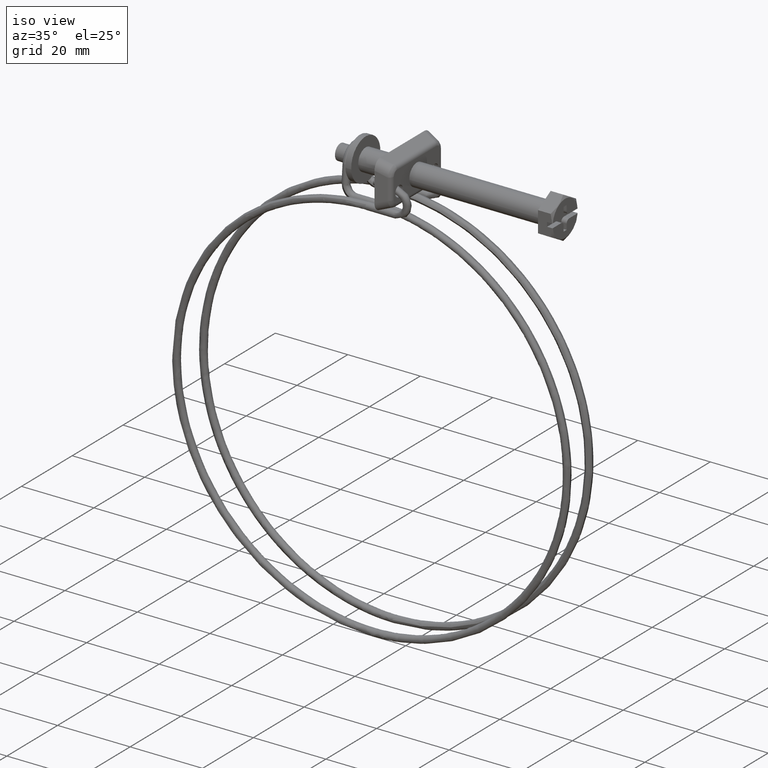
[diagram: clean part render]
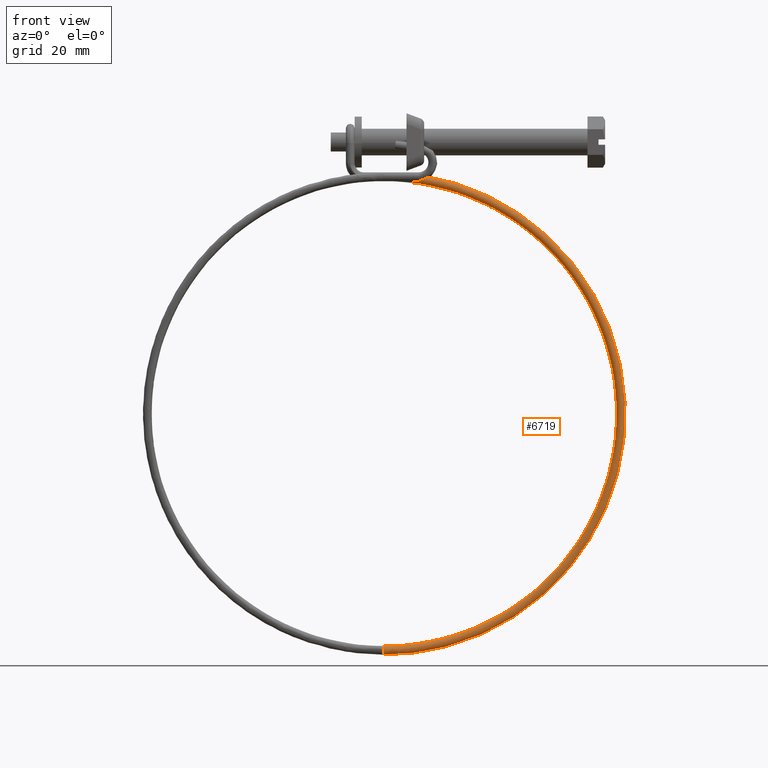
[diagram: tour spotlight — one face highlighted and labeled with its STEP entity id]
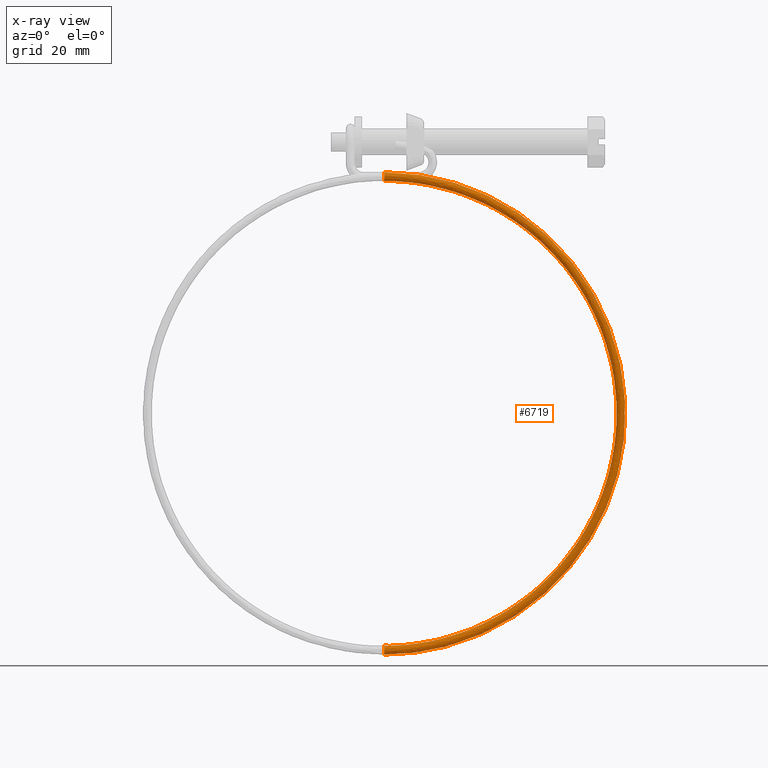
[diagram: x-ray of the same camera — body ghosted, this tour face saturated]
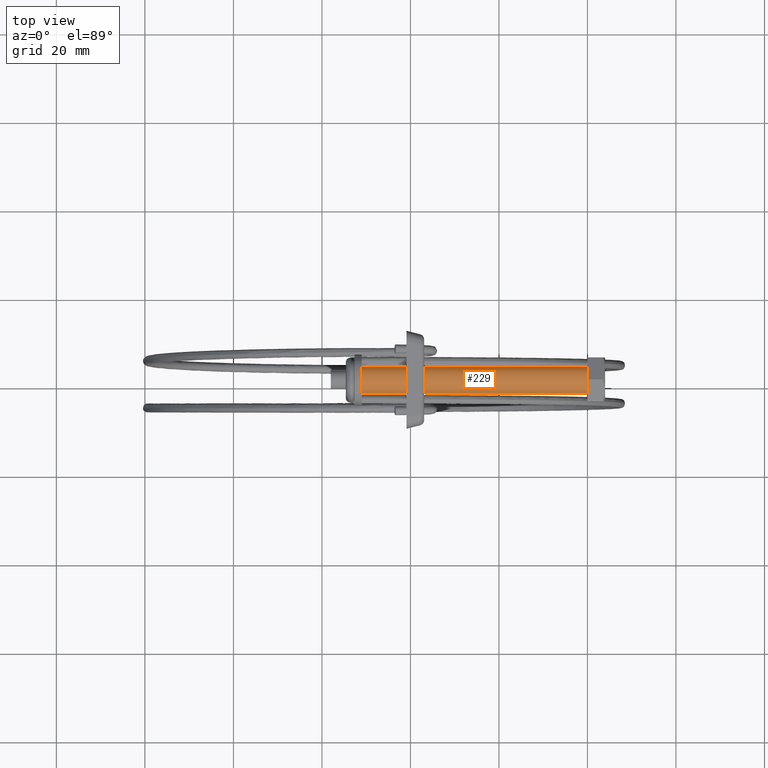
[diagram: tour spotlight — one face highlighted and labeled with its STEP entity id]
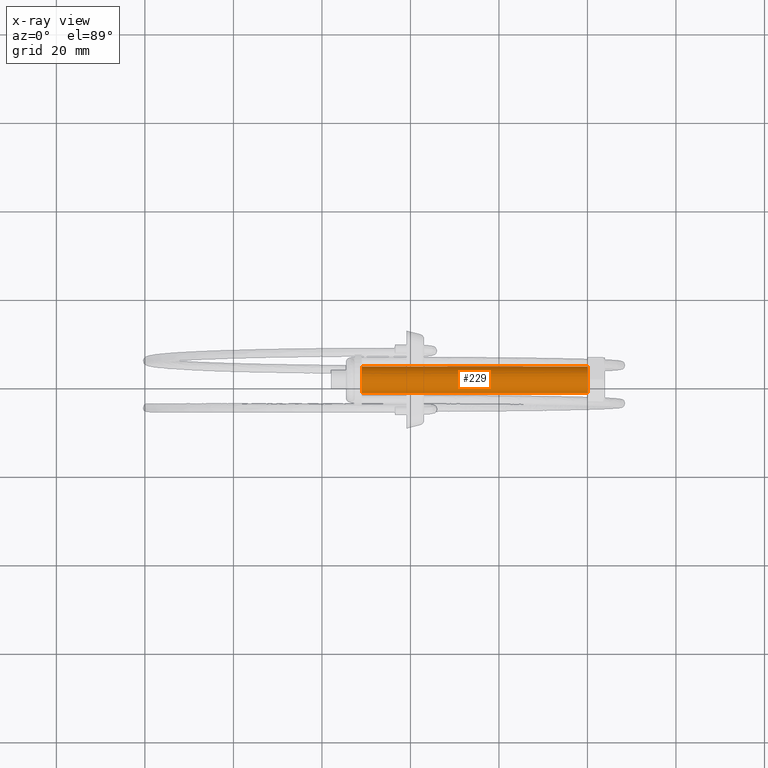
[diagram: x-ray of the same camera — body ghosted, this tour face saturated]
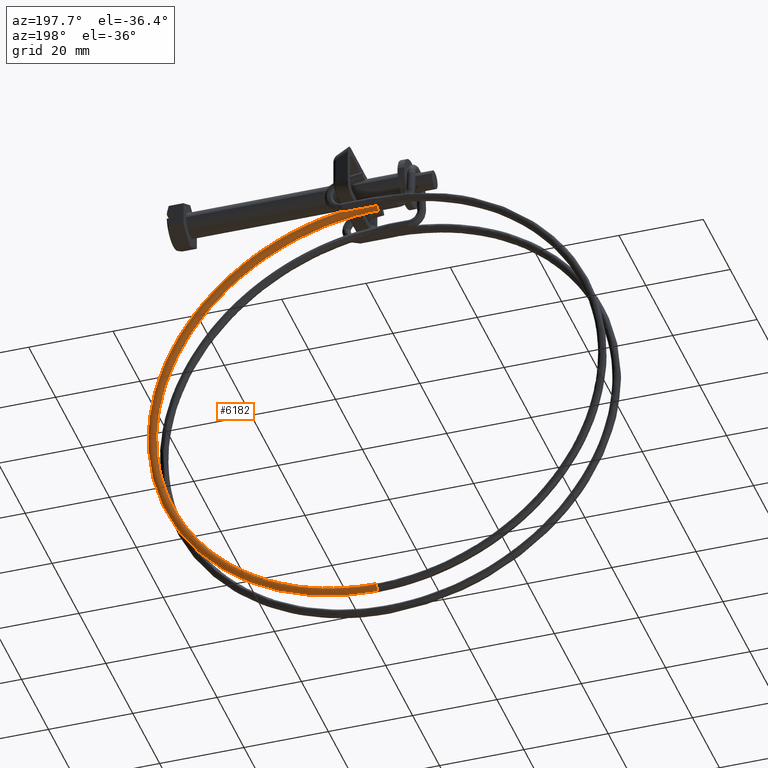
[diagram: tour spotlight — one face highlighted and labeled with its STEP entity id]
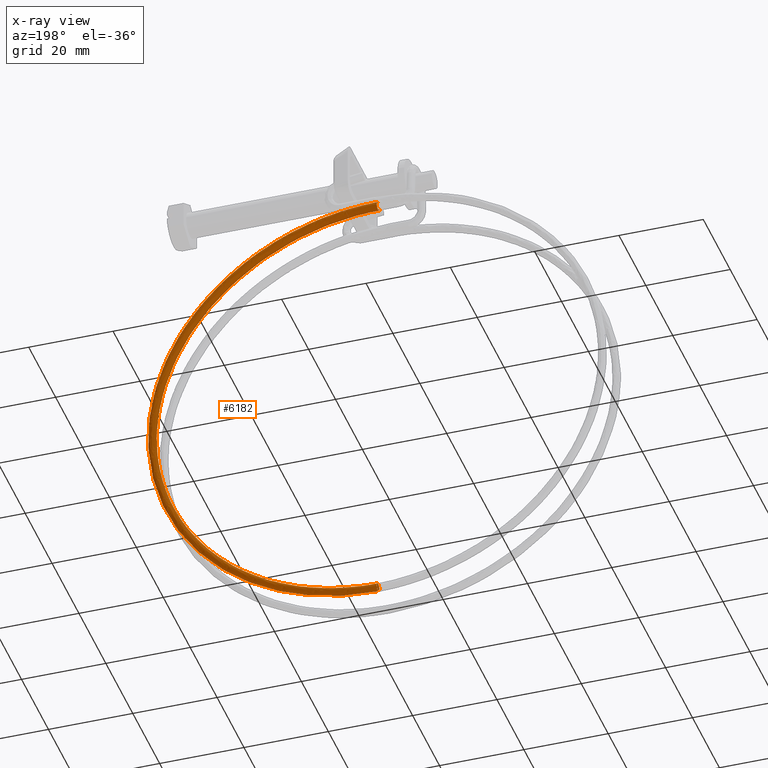
[diagram: x-ray of the same camera — body ghosted, this tour face saturated]
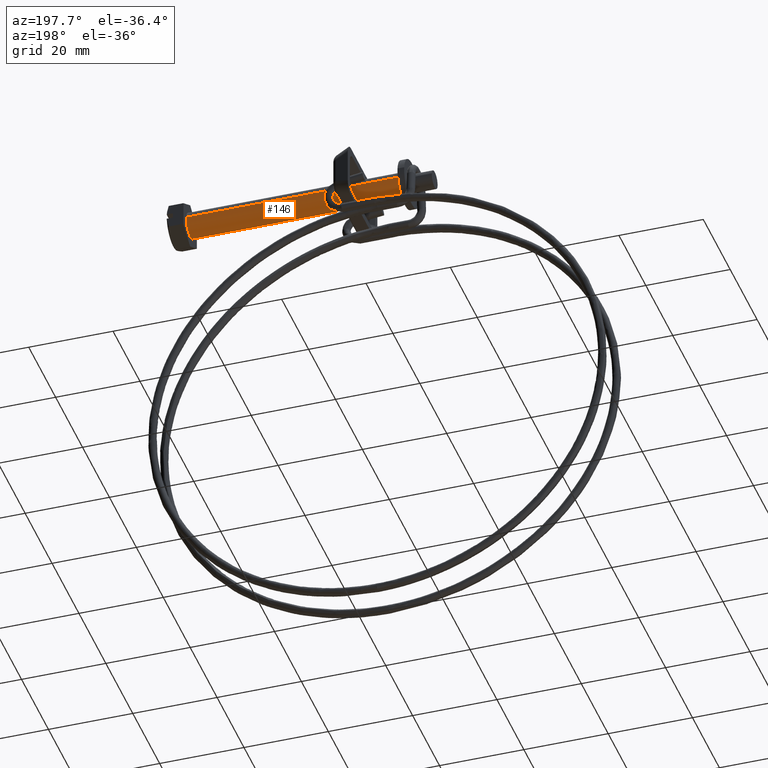
[diagram: tour spotlight — one face highlighted and labeled with its STEP entity id]
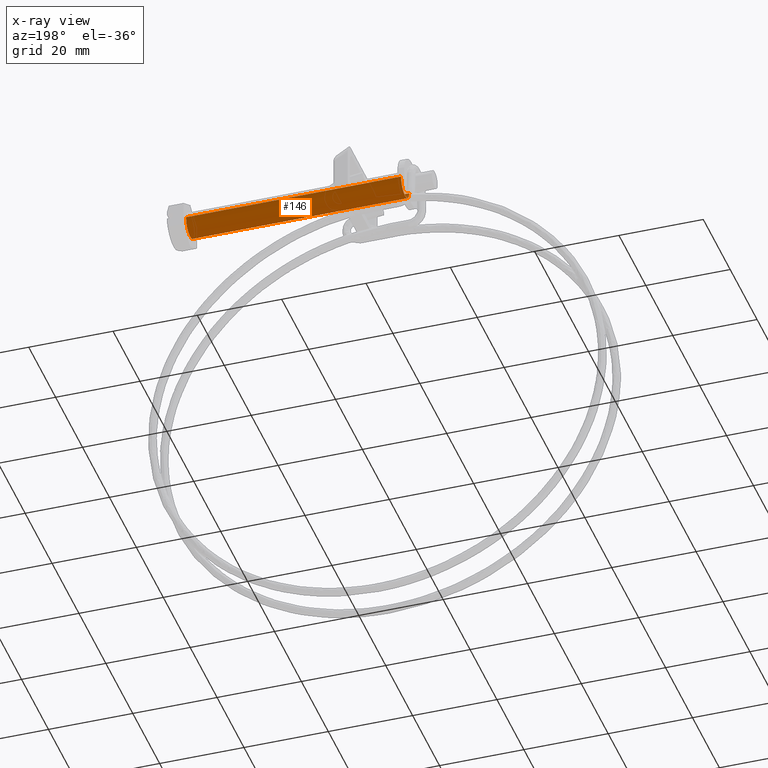
[diagram: x-ray of the same camera — body ghosted, this tour face saturated]
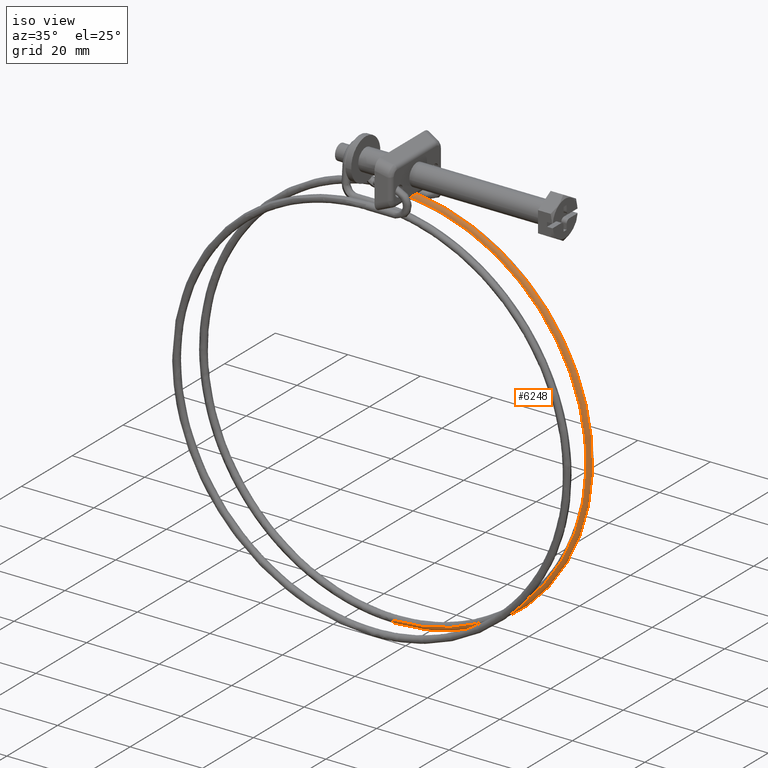
[diagram: tour spotlight — one face highlighted and labeled with its STEP entity id]
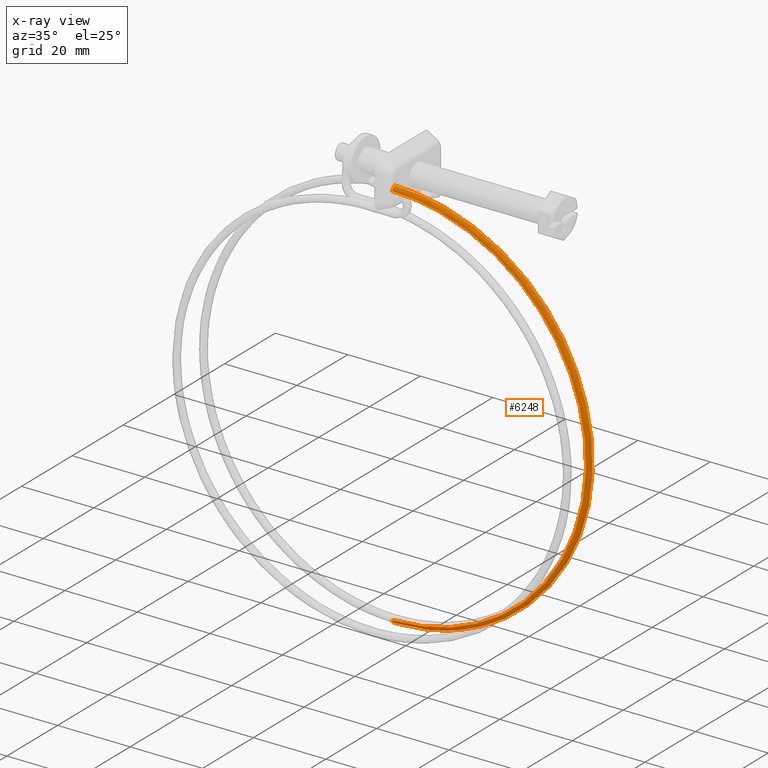
[diagram: x-ray of the same camera — body ghosted, this tour face saturated]
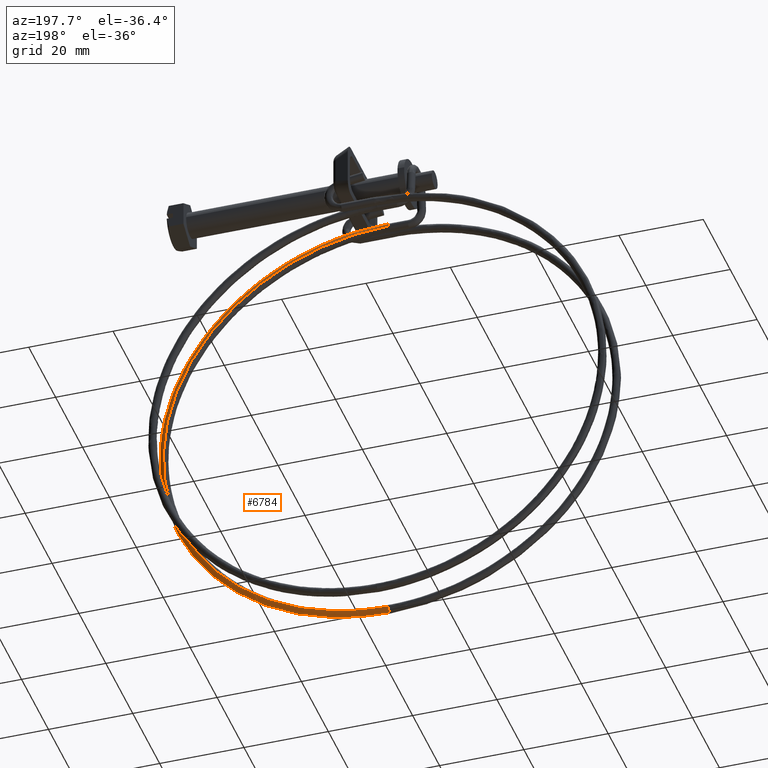
[diagram: tour spotlight — one face highlighted and labeled with its STEP entity id]
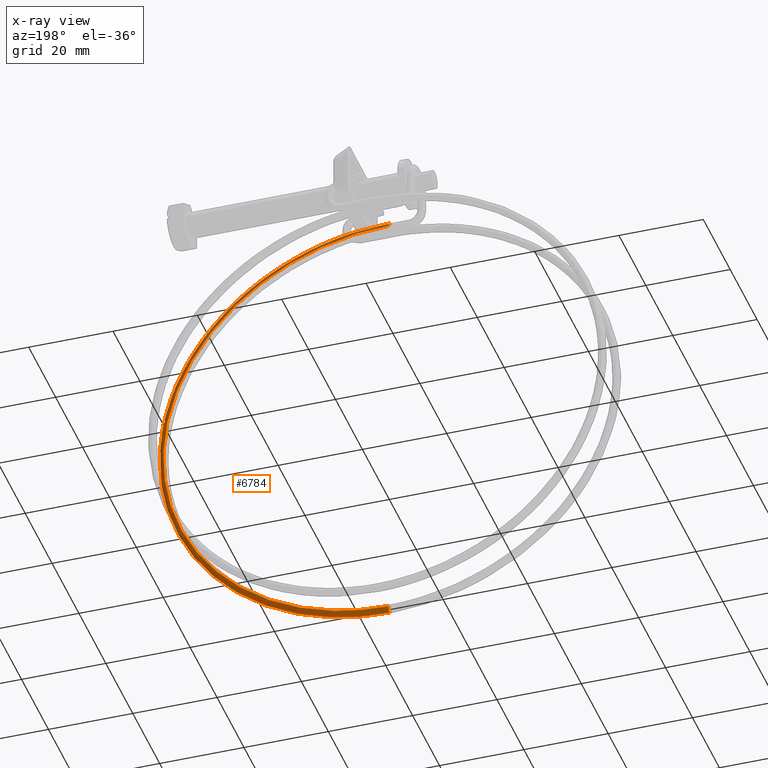
[diagram: x-ray of the same camera — body ghosted, this tour face saturated]
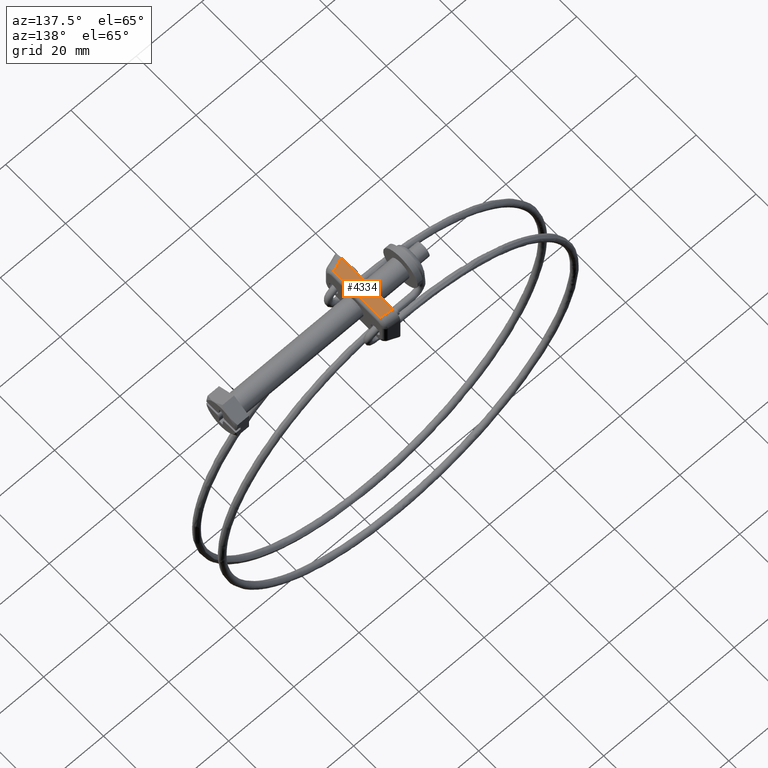
[diagram: tour spotlight — one face highlighted and labeled with its STEP entity id]
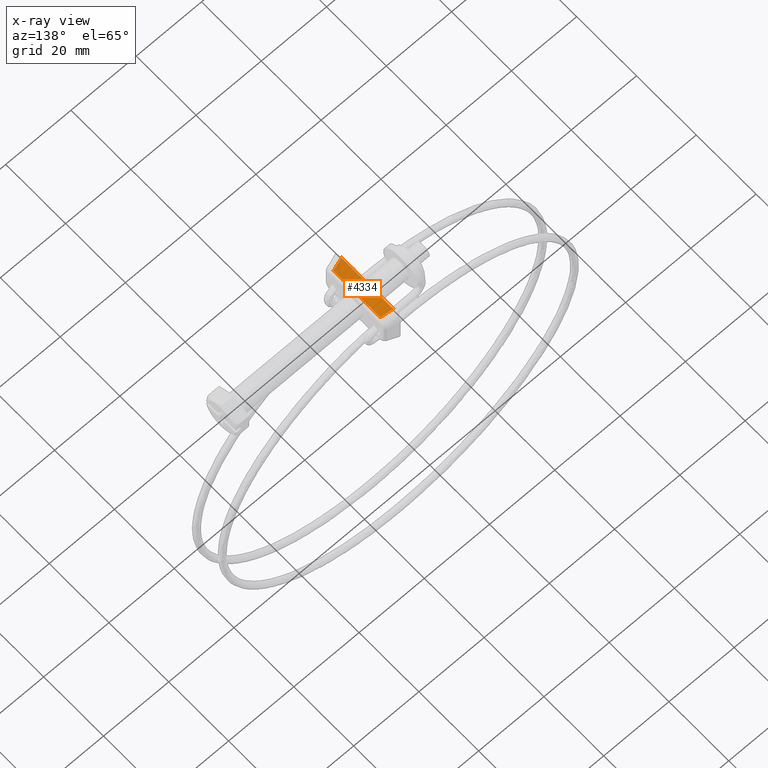
[diagram: x-ray of the same camera — body ghosted, this tour face saturated]
A machine part: a face-by-face anatomy tour. The part has 119 B-rep faces; the first image is the clean iso view, then the 7 largest visible faces are spotlighted one at a time (largest first), each with its STEP entity span.

Face 1 — front view, entity #6719. An x-ray twin of the same camera follows (body ghosted, this face saturated) — the face is partly hidden behind the body. In plain terms, the highlighted face is a freeform B-spline surface patch.
Definition (entity closure, byte-faithful):
#4741=CARTESIAN_POINT('',(-45.950006653889190,-4.979170056737654,-7.116018199992277));
#4742=VERTEX_POINT('',#4741);
#4743=CARTESIAN_POINT('',(-45.950001499776469,-5.071626583384441,-8.486079220281741));
#4744=VERTEX_POINT('',#4743);
#4745=CARTESIAN_POINT('',(-45.950006653889176,-4.979170056737654,-7.116018199992277));
#4746=CARTESIAN_POINT('',(-45.950005537069764,-5.300002000000001,-7.412890016938100));
#4747=CARTESIAN_POINT('',(-45.950003892676371,-5.300002000000000,-7.850001000000526));
#4748=CARTESIAN_POINT('',(-45.950002541995254,-5.300002000000001,-8.209037686583095));
#4749=CARTESIAN_POINT('',(-45.950001499776462,-5.071626583384441,-8.486079220281741));
#4757=(BOUNDED_CURVE()B_SPLINE_CURVE(2,(#4745,#4746,#4747,#4748,#4749),.UNSPECIFIED.,.F.,.U.)B_SPLINE_CURVE_WITH_KNOTS((3,2,3),(0.119149388042856,0.250000000000000,0.360504625861107),.UNSPECIFIED.)CURVE()GEOMETRIC_REPRESENTATION_ITEM()RATIONAL_B_SPLINE_CURVE((0.853874210925314,0.846698972320649,1.0,0.870535777751056,0.855522719038262))REPRESENTATION_ITEM(''));
#4758=EDGE_CURVE('',#4742,#4744,#4757,.T.);
#4833=CARTESIAN_POINT('',(-45.950007654634788,-4.300002000000000,-6.850001000001059));
#4834=VERTEX_POINT('',#4833);
#4835=CARTESIAN_POINT('',(-45.950007654634788,-4.300002000000000,-6.850001000001059));
#4836=CARTESIAN_POINT('',(-45.950007654634824,-4.691682965194319,-6.850001000001058));
#4837=CARTESIAN_POINT('',(-45.950006653889190,-4.979170056737654,-7.116018199992279));
#4845=(BOUNDED_CURVE()B_SPLINE_CURVE(2,(#4835,#4836,#4837),.UNSPECIFIED.,.F.,.U.)B_SPLINE_CURVE_WITH_KNOTS((3,3),(0.0,0.119149388042856),.UNSPECIFIED.)CURVE()GEOMETRIC_REPRESENTATION_ITEM()RATIONAL_B_SPLINE_CURVE((1.0,0.860407808865899,0.853874210925315))REPRESENTATION_ITEM(''));
#4846=EDGE_CURVE('',#4834,#4742,#4845,.T.);
#4848=CARTESIAN_POINT('',(-45.950000014918629,-3.306690362090745,-7.965465236861563));
#4849=VERTEX_POINT('',#4848);
#4865=CARTESIAN_POINT('',(-45.950000130717747,-4.300002000000000,-8.850000999999994));
#4866=VERTEX_POINT('',#4865);
#4867=CARTESIAN_POINT('',(-45.950000130717747,-4.300002000000000,-8.850000999999994));
#4868=CARTESIAN_POINT('',(-45.950000130717648,-3.409510312773245,-8.850000999999994));
#4869=CARTESIAN_POINT('',(-45.950000014918629,-3.306690362090745,-7.965465236861563));
#4877=(BOUNDED_CURVE()B_SPLINE_CURVE(2,(#4867,#4868,#4869),.UNSPECIFIED.,.F.,.U.)B_SPLINE_CURVE_WITH_KNOTS((3,3),(0.500000000000000,0.729999997433827),.UNSPECIFIED.)CURVE()GEOMETRIC_REPRESENTATION_ITEM()RATIONAL_B_SPLINE_CURVE((1.0,0.730538241698082,0.956886113139810))REPRESENTATION_ITEM(''));
#4878=EDGE_CURVE('',#4866,#4849,#4877,.T.);
#4880=CARTESIAN_POINT('',(-45.950001499776469,-5.071626583384441,-8.486079220281741));
#4881=CARTESIAN_POINT('',(-45.950000130717804,-4.771632618764910,-8.850000999999994));
#4882=CARTESIAN_POINT('',(-45.950000130717747,-4.300002000000000,-8.850000999999994));
#4890=(BOUNDED_CURVE()B_SPLINE_CURVE(2,(#4880,#4881,#4882),.UNSPECIFIED.,.F.,.U.)B_SPLINE_CURVE_WITH_KNOTS((3,3),(0.360504625861107,0.500000000000000),.UNSPECIFIED.)CURVE()GEOMETRIC_REPRESENTATION_ITEM()RATIONAL_B_SPLINE_CURVE((0.855522719038262,0.836571003435492,1.0))REPRESENTATION_ITEM(''));
#4891=EDGE_CURVE('',#4744,#4866,#4890,.T.);
#6603=CARTESIAN_POINT('',(-53.499447055198857,-3.306690361214919,-8.501968788658253));
#6604=CARTESIAN_POINT('',(7.822689269059103,-3.306690361214920,0.258020980503274));
#6605=CARTESIAN_POINT('',(7.433482005641278,-3.306690361214919,-61.685423723781568));
#6606=CARTESIAN_POINT('',(7.048910064720909,-3.306690361214920,-122.891143647993910));
#6607=CARTESIAN_POINT('',(-53.536772339071995,-3.306690361214919,-114.192687768609090));
#6608=CARTESIAN_POINT('',(-53.374359220815286,-3.409510299173056,-9.377615157513384));
#6609=CARTESIAN_POINT('',(6.931722129285038,-3.409510299173057,-0.762770872707824));
#6610=CARTESIAN_POINT('',(6.548963694947181,-3.409510299173057,-61.679866058191742));
#6611=CARTESIAN_POINT('',(6.170763779806014,-3.409510299173056,-121.871459927710560));
#6612=CARTESIAN_POINT('',(-53.411066056887783,-3.409510299173055,-113.317129969135310));
#6613=CARTESIAN_POINT('',(-53.374359220815300,-4.300002000000000,-9.377615157513382));
#6614=CARTESIAN_POINT('',(6.931722129285035,-4.300001999999999,-0.762770872707823));
#6615=CARTESIAN_POINT('',(6.548963694947183,-4.300002000000000,-61.679866058191742));
#6616=CARTESIAN_POINT('',(6.170763779806014,-4.300001999999999,-121.871459927710590));
#6617=CARTESIAN_POINT('',(-53.411066056887798,-4.300002000000002,-113.317129969135380));
#6618=CARTESIAN_POINT('',(-53.374359220815293,-5.300001999999998,-9.377615157513382));
#6619=CARTESIAN_POINT('',(6.931722129285036,-5.300001999999999,-0.762770872707823));
#6620=CARTESIAN_POINT('',(6.548963694947183,-5.300001999999999,-61.679866058191742));
#6621=CARTESIAN_POINT('',(6.170763779806014,-5.300001999999999,-121.871459927710620));
#6622=CARTESIAN_POINT('',(-53.411066056887790,-5.300001999999999,-113.317129969135320));
#6623=CARTESIAN_POINT('',(-53.515775586926054,-5.300002000000000,-8.387664950989835));
#6624=CARTESIAN_POINT('',(7.938993026985696,-5.300002000000000,0.391271605907273));
#6625=CARTESIAN_POINT('',(7.548943955803317,-5.300002000000000,-61.686149202157303));
#6626=CARTESIAN_POINT('',(7.163540232754693,-5.300002000000000,-123.024249621571760));
#6627=CARTESIAN_POINT('',(-53.553181600828530,-5.300002000000000,-114.306980044737870));
#6628=CARTESIAN_POINT('',(-53.657191953036815,-5.300002000000000,-7.397714744466277));
#6629=CARTESIAN_POINT('',(8.946263924686363,-5.300001999999999,1.545314084522348));
#6630=CARTESIAN_POINT('',(8.548924216659458,-5.300002000000001,-61.692432346122857));
#6631=CARTESIAN_POINT('',(8.156316685703382,-5.300002000000002,-124.177039315432940));
#6632=CARTESIAN_POINT('',(-53.695297144769235,-5.300001999999999,-115.296830120340500));
#6633=CARTESIAN_POINT('',(-53.657191953036829,-4.300002000000000,-7.397714744466277));
#6634=CARTESIAN_POINT('',(8.946263924686363,-4.300001999999999,1.545314084522347));
#6635=CARTESIAN_POINT('',(8.548924216659458,-4.300002000000000,-61.692432346122857));
#6636=CARTESIAN_POINT('',(8.156316685703381,-4.300001999999999,-124.177039315432880));
#6637=CARTESIAN_POINT('',(-53.695297144769242,-4.300002000000002,-115.296830120340460));
#6645=(BOUNDED_SURFACE()B_SPLINE_SURFACE(2,2,((#6603,#6608,#6613,#6618,#6623,#6628,#6633),(#6604,#6609,#6614,#6619,#6624,#6629,#6634),(#6605,#6610,#6615,#6620,#6625,#6630,#6635),(#6606,#6611,#6616,#6621,#6626,#6631,#6636),(#6607,#6612,#6617,#6622,#6627,#6632,#6637)),.UNSPECIFIED.,.F.,.F.,.U.)B_SPLINE_SURFACE_WITH_KNOTS((3,2,3),(3,2,2,3),(0.0,99.910901177302179,199.045352543380200),(0.0,1.524305909532996,3.181160159025384,4.838014408517771),.UNSPECIFIED.)GEOMETRIC_REPRESENTATION_ITEM()RATIONAL_B_SPLINE_SURFACE(((0.948062035177507,0.723801459946535,0.990778335221501,0.700586079487842,0.990778335221501,0.700586079487842,0.990778335221501),(0.621794211171323,0.474711085491197,0.649810044634204,0.459485089043979,0.649810044634204,0.459485089043979,0.649810044634204),(0.956886118190660,0.730538238691624,1.0,0.707106781186548,1.0,0.707106781186548,1.0),(0.624398351909541,0.476699226349380,0.652531518682906,0.461409461798639,0.652531518682906,0.461409461798639,0.652531518682906),(0.943030847877677,0.719960381432934,0.985520460533819,0.696868200641553,0.985520460533819,0.696868200641553,0.985520460533819)))REPRESENTATION_ITEM('')SURFACE());
#6646=ORIENTED_EDGE('',*,*,#4878,.T.);
#6647=CARTESIAN_POINT('',(-45.949999999984499,-3.306810287597761,-114.734551136563890));
#6648=VERTEX_POINT('',#6647);
#6649=CARTESIAN_POINT('',(-45.950000014918629,-3.306690362090745,-7.965465236861563));
#6650=CARTESIAN_POINT('',(7.771018901294922,-3.306690362090735,-7.965465222023417));
#6651=CARTESIAN_POINT('',(7.433482005555099,-3.306750701598874,-61.685430955602193));
#6652=CARTESIAN_POINT('',(7.100160211635697,-3.306810287597769,-114.734551136548480));
#6653=CARTESIAN_POINT('',(-45.949999999984499,-3.306810287597761,-114.734551136563880));
#6661=(BOUNDED_CURVE()B_SPLINE_CURVE(2,(#6649,#6650,#6651,#6652,#6653),.UNSPECIFIED.,.F.,.U.)B_SPLINE_CURVE_WITH_KNOTS((3,2,3),(-3.795101889789287,-2.0,-0.220236089794993),.UNSPECIFIED.)CURVE()GEOMETRIC_REPRESENTATION_ITEM()RATIONAL_B_SPLINE_CURVE((0.894438311840631,0.652111192322342,0.956886118190660,0.654715296087904,0.890337197880611))REPRESENTATION_ITEM(''));
#6662=EDGE_CURVE('',#4849,#6648,#6661,.T.);
#6663=ORIENTED_EDGE('',*,*,#6662,.T.);
#6664=CARTESIAN_POINT('',(-45.950000000001147,-4.300002000000002,-113.850000999999910));
#6665=VERTEX_POINT('',#6664);
#6666=CARTESIAN_POINT('',(-45.950000000001147,-4.300002000000002,-113.850000999999910));
#6667=CARTESIAN_POINT('',(-45.949999999998703,-4.038184983386362,-113.849998888258200));
#6668=CARTESIAN_POINT('',(-45.949999999995370,-3.777973727979099,-113.957769111570900));
#6669=CARTESIAN_POINT('',(-45.949999999989323,-3.434978456789548,-114.300715488888800));
#6670=CARTESIAN_POINT('',(-45.949999999986588,-3.333351637188295,-114.513111612347800));
#6671=CARTESIAN_POINT('',(-45.949999999984499,-3.306810287597761,-114.734551136563890));
#6672=B_SPLINE_CURVE_WITH_KNOTS('',3,(#6666,#6667,#6668,#6669,#6670,#6671),.UNSPECIFIED.,.F.,.U.,(4,2,4),(0.500000000000000,0.625000000000000,0.731573696068176),.UNSPECIFIED.);
#6673=EDGE_CURVE('',#6665,#6648,#6672,.T.);
#6674=ORIENTED_EDGE('',*,*,#6673,.F.);
#6675=CARTESIAN_POINT('',(-45.950000000001253,-5.028950952944387,-115.534536709492800));
#6676=VERTEX_POINT('',#6675);
#6677=CARTESIAN_POINT('',(-45.950000000001253,-5.028950952944387,-115.534536709492800));
#6678=CARTESIAN_POINT('',(-45.950000000001189,-5.200678688407399,-115.351169156825700));
#6679=CARTESIAN_POINT('',(-45.950000000001182,-5.300001999999999,-115.101327939052790));
#6680=CARTESIAN_POINT('',(-45.950000000001182,-5.300002000000001,-114.588201612200810));
#6681=CARTESIAN_POINT('',(-45.950000000001182,-5.192228903609815,-114.328014341236600));
#6682=CARTESIAN_POINT('',(-45.950000000001147,-4.821988658763284,-113.957774096390100));
#6683=CARTESIAN_POINT('',(-45.950000000001147,-4.561801387799152,-113.850000999999910));
#6684=CARTESIAN_POINT('',(-45.950000000001147,-4.300002000000002,-113.850000999999910));
#6685=B_SPLINE_CURVE_WITH_KNOTS('',3,(#6677,#6678,#6679,#6680,#6681,#6682,#6683,#6684),.UNSPECIFIED.,.F.,.U.,(4,2,2,4),(0.130000225952720,0.250000000000000,0.375000000000000,0.500000000000000),.UNSPECIFIED.);
#6686=EDGE_CURVE('',#6676,#6665,#6685,.T.);
#6687=ORIENTED_EDGE('',*,*,#6686,.F.);
#6688=CARTESIAN_POINT('',(-45.949999999969982,-4.300002000000003,-115.850000999999910));
#6689=VERTEX_POINT('',#6688);
#6690=CARTESIAN_POINT('',(-45.949999999969982,-4.300002000000003,-115.850000999999910));
#6691=CARTESIAN_POINT('',(-45.950000000001197,-4.561801387799146,-115.850000999999910));
#6692=CARTESIAN_POINT('',(-45.950000000001197,-4.821988658763279,-115.742227903609700));
#6693=CARTESIAN_POINT('',(-45.950000000001197,-5.014513920710638,-115.549702641662410));
#6694=CARTESIAN_POINT('',(-45.950000000001197,-5.021795293807691,-115.542177383844900));
#6695=CARTESIAN_POINT('',(-45.950000000001253,-5.028950952944387,-115.534536709492800));
#6696=B_SPLINE_CURVE_WITH_KNOTS('',3,(#6690,#6691,#6692,#6693,#6694,#6695),.UNSPECIFIED.,.F.,.U.,(4,2,4),(0.0,0.125000000000000,0.130000225952720),.UNSPECIFIED.);
#6697=EDGE_CURVE('',#6689,#6676,#6696,.T.);
#6698=ORIENTED_EDGE('',*,*,#6697,.F.);
#6699=CARTESIAN_POINT('',(-45.950007654634788,-4.300002000000000,-6.850001000001059));
#6700=CARTESIAN_POINT('',(8.893513958533232,-4.300001999999999,-6.849993297117369));
#6701=CARTESIAN_POINT('',(8.548924216659458,-4.300002000000000,-61.692432346122857));
#6702=CARTESIAN_POINT('',(8.208637699018363,-4.300002000000000,-115.850000999938900));
#6703=CARTESIAN_POINT('',(-45.949999999969968,-4.300002000000003,-115.850000999999890));
#6711=(BOUNDED_CURVE()B_SPLINE_CURVE(2,(#6699,#6700,#6701,#6702,#6703),.UNSPECIFIED.,.F.,.U.)B_SPLINE_CURVE_WITH_KNOTS((3,2,3),(-3.795102061276662,-2.0,-0.220236089796010),.UNSPECIFIED.)CURVE()GEOMETRIC_REPRESENTATION_ITEM()RATIONAL_B_SPLINE_CURVE((0.934738566206044,0.681492970595107,1.0,0.684214436432680,0.930452622265904))REPRESENTATION_ITEM(''));
#6712=EDGE_CURVE('',#4834,#6689,#6711,.T.);
#6713=ORIENTED_EDGE('',*,*,#6712,.F.);
#6714=ORIENTED_EDGE('',*,*,#4846,.T.);
#6715=ORIENTED_EDGE('',*,*,#4758,.T.);
#6716=ORIENTED_EDGE('',*,*,#4891,.T.);
#6717=EDGE_LOOP('',(#6646,#6663,#6674,#6687,#6698,#6713,#6714,#6715,#6716));
#6718=FACE_OUTER_BOUND('',#6717,.T.);
#6719=ADVANCED_FACE('',(#6718),#6645,.T.);

Face 2 — top view, entity #229. An x-ray twin of the same camera follows (body ghosted, this face saturated) — the face is partly hidden behind the body. In plain terms, the highlighted face is a freeform B-spline surface patch.
Definition (entity closure, byte-faithful):
#66=CARTESIAN_POINT('',(-1.135771E-015,2.979028568189782,0.354102795682015));
#67=VERTEX_POINT('',#66);
#85=CARTESIAN_POINT('',(1.665335E-015,-2.994404395231581,-0.183145619162668));
#86=VERTEX_POINT('',#85);
#100=CARTESIAN_POINT('',(-51.0,-2.994404395231581,-0.183145619162668));
#101=VERTEX_POINT('',#100);
#102=CARTESIAN_POINT('',(1.665335E-015,-2.994404395231581,-0.183145619162668));
#103=CARTESIAN_POINT('',(-51.0,-2.994404395231581,-0.183145619162668));
#104=QUASI_UNIFORM_CURVE('',1,(#102,#103),.UNSPECIFIED.,.F.,.U.);
#105=EDGE_CURVE('',#86,#101,#104,.T.);
#122=CARTESIAN_POINT('',(-51.0,2.979028568189782,0.354102795682015));
#123=VERTEX_POINT('',#122);
#139=CARTESIAN_POINT('',(-1.135771E-015,2.979028568189782,0.354102795682015));
#140=CARTESIAN_POINT('',(-51.0,2.979028568189782,0.354102795682015));
#141=QUASI_UNIFORM_CURVE('',1,(#139,#140),.UNSPECIFIED.,.F.,.U.);
#142=EDGE_CURVE('',#67,#123,#141,.T.);
#147=CARTESIAN_POINT('',(1.275000000000001,-2.994404395265715,-0.183145618604578));
#148=CARTESIAN_POINT('',(1.275000000000001,-3.177550013870294,2.811258776661137));
#149=CARTESIAN_POINT('',(1.275000000000001,-0.183145618604578,2.994404395265715));
#150=CARTESIAN_POINT('',(1.275000000000001,2.644630472518604,3.167358590197703));
#151=CARTESIAN_POINT('',(1.275000000000002,2.979028579091114,0.354102703970289));
#152=CARTESIAN_POINT('',(-52.306875000000012,-2.994404395265715,-0.183145618604578));
#153=CARTESIAN_POINT('',(-52.306875000000019,-3.177550013870294,2.811258776661137));
#154=CARTESIAN_POINT('',(-52.306875000000012,-0.183145618604578,2.994404395265715));
#155=CARTESIAN_POINT('',(-52.306875000000005,2.644630472518604,3.167358590197703));
#156=CARTESIAN_POINT('',(-52.306875000000026,2.979028579091114,0.354102703970289));
#164=(BOUNDED_SURFACE()B_SPLINE_SURFACE(2,1,((#147,#152),(#148,#153),(#149,#154),(#150,#155),(#151,#156)),.UNSPECIFIED.,.F.,.F.,.U.)B_SPLINE_SURFACE_WITH_KNOTS((3,2,3),(2,2),(0.0,4.970562748477330,9.742302987015567),(0.0,53.581875000000032),.UNSPECIFIED.)GEOMETRIC_REPRESENTATION_ITEM()RATIONAL_B_SPLINE_SURFACE(((1.0,1.0),(0.707106781186548,0.707106781186548),(1.0,1.0),(0.718822509939086,0.718822509939086),(0.977505800795127,0.977505800795127)))REPRESENTATION_ITEM('')SURFACE());
#165=CARTESIAN_POINT('',(0.0,0.0,3.000000000000115));
#166=VERTEX_POINT('',#165);
#167=CARTESIAN_POINT('',(0.0,0.0,3.000000000000115));
#168=CARTESIAN_POINT('',(0.0,2.664523412640390,3.000000000000116));
#169=CARTESIAN_POINT('',(-1.135771E-015,2.979028568189782,0.354102795682015));
#177=(BOUNDED_CURVE()B_SPLINE_CURVE(2,(#167,#168,#169),.UNSPECIFIED.,.F.,.U.)B_SPLINE_CURVE_WITH_KNOTS((3,3),(0.500000000000000,0.729562463109849),.UNSPECIFIED.)CURVE()GEOMETRIC_REPRESENTATION_ITEM()RATIONAL_B_SPLINE_CURVE((1.0,0.731050845044047,0.956026733792103))REPRESENTATION_ITEM(''));
#178=EDGE_CURVE('',#166,#67,#177,.T.);
#179=ORIENTED_EDGE('',*,*,#178,.T.);
#180=ORIENTED_EDGE('',*,*,#142,.T.);
#181=CARTESIAN_POINT('',(-51.0,0.0,3.000000000000115));
#182=VERTEX_POINT('',#181);
#183=CARTESIAN_POINT('',(-51.0,0.0,3.000000000000115));
#184=CARTESIAN_POINT('',(-51.000000000000007,2.664523412640400,3.000000000000114));
#185=CARTESIAN_POINT('',(-51.0,2.979028568189782,0.354102795682015));
#193=(BOUNDED_CURVE()B_SPLINE_CURVE(2,(#183,#184,#185),.UNSPECIFIED.,.F.,.U.)B_SPLINE_CURVE_WITH_KNOTS((3,3),(0.0,0.229562463109850),.UNSPECIFIED.)CURVE()GEOMETRIC_REPRESENTATION_ITEM()RATIONAL_B_SPLINE_CURVE((1.0,0.731050845044047,0.956026733792104))REPRESENTATION_ITEM(''));
#194=EDGE_CURVE('',#182,#123,#193,.T.);
#195=ORIENTED_EDGE('',*,*,#194,.F.);
#196=CARTESIAN_POINT('',(-50.999999999999993,-2.994404395231581,-0.183145619162668));
#197=CARTESIAN_POINT('',(-51.000000000000007,-3.000000000000115,-0.091658290455425));
#198=CARTESIAN_POINT('',(-51.0,-3.000000000000115,0.0));
#199=CARTESIAN_POINT('',(-50.999999999999993,-3.000000000000114,3.000000000000114));
#200=CARTESIAN_POINT('',(-51.0,0.0,3.000000000000115));
#208=(BOUNDED_CURVE()B_SPLINE_CURVE(2,(#196,#197,#198,#199,#200),.UNSPECIFIED.,.F.,.U.)B_SPLINE_CURVE_WITH_KNOTS((3,2,3),(0.739332962177651,0.750000000000000,1.0),.UNSPECIFIED.)CURVE()GEOMETRIC_REPRESENTATION_ITEM()RATIONAL_B_SPLINE_CURVE((0.976072041535357,0.987502787828029,1.0,0.707106781186547,1.0))REPRESENTATION_ITEM(''));
#209=EDGE_CURVE('',#101,#182,#208,.T.);
#210=ORIENTED_EDGE('',*,*,#209,.F.);
#211=ORIENTED_EDGE('',*,*,#105,.F.);
#212=CARTESIAN_POINT('',(1.665335E-015,-2.994404395231581,-0.183145619162668));
#213=CARTESIAN_POINT('',(0.0,-3.000000000000115,-0.091658290455425));
#214=CARTESIAN_POINT('',(0.0,-3.000000000000115,0.0));
#215=CARTESIAN_POINT('',(0.0,-3.000000000000114,3.000000000000114));
#216=CARTESIAN_POINT('',(0.0,0.0,3.000000000000115));
#224=(BOUNDED_CURVE()B_SPLINE_CURVE(2,(#212,#213,#214,#215,#216),.UNSPECIFIED.,.F.,.U.)B_SPLINE_CURVE_WITH_KNOTS((3,2,3),(0.239332962177650,0.250000000000000,0.500000000000000),.UNSPECIFIED.)CURVE()GEOMETRIC_REPRESENTATION_ITEM()RATIONAL_B_SPLINE_CURVE((0.976072041535357,0.987502787828029,1.0,0.707106781186547,1.0))REPRESENTATION_ITEM(''));
#225=EDGE_CURVE('',#86,#166,#224,.T.);
#226=ORIENTED_EDGE('',*,*,#225,.T.);
#227=EDGE_LOOP('',(#179,#180,#195,#210,#211,#226));
#228=FACE_OUTER_BOUND('',#227,.T.);
#229=ADVANCED_FACE('',(#228),#164,.T.);

Face 3 — auxiliary view, entity #6182. An x-ray twin of the same camera follows (body ghosted, this face saturated) — the face is partly hidden behind the body. In plain terms, the highlighted face is a freeform B-spline surface patch.
Definition (entity closure, byte-faithful):
#5495=CARTESIAN_POINT('',(-45.950000000001303,4.871712610911032,-7.029545652420534));
#5496=VERTEX_POINT('',#5495);
#5502=CARTESIAN_POINT('',(-45.950000000001303,4.300002000000000,-8.850000999999999));
#5503=VERTEX_POINT('',#5502);
#5504=CARTESIAN_POINT('',(-45.950000000001296,4.871712610911033,-7.029545652420534));
#5505=CARTESIAN_POINT('',(-45.950000000001296,5.300002000000001,-7.327986742508307));
#5506=CARTESIAN_POINT('',(-45.950000000001303,5.300002000000000,-7.850001000000001));
#5507=CARTESIAN_POINT('',(-45.950000000001303,5.300002000000001,-8.850000999999999));
#5508=CARTESIAN_POINT('',(-45.950000000001303,4.300002000000000,-8.850000999999999));
#5516=(BOUNDED_CURVE()B_SPLINE_CURVE(2,(#5504,#5505,#5506,#5507,#5508),.UNSPECIFIED.,.F.,.U.)B_SPLINE_CURVE_WITH_KNOTS((3,2,3),(0.098251884133233,0.250000000000000,0.500000000000000),.UNSPECIFIED.)CURVE()GEOMETRIC_REPRESENTATION_ITEM()RATIONAL_B_SPLINE_CURVE((0.860259114783998,0.822216023579624,1.0,0.707106781186548,1.0))REPRESENTATION_ITEM(''));
#5517=EDGE_CURVE('',#5496,#5503,#5516,.T.);
#5519=CARTESIAN_POINT('',(-45.949999999884170,3.302436326490941,-7.919734256301691));
#5520=VERTEX_POINT('',#5519);
#5521=CARTESIAN_POINT('',(-45.950000000001303,4.300002000000000,-8.850000999999999));
#5522=CARTESIAN_POINT('',(-45.950000000001296,3.367465161591324,-8.850000999999999));
#5523=CARTESIAN_POINT('',(-45.949999999884177,3.302436326490941,-7.919734256301691));
#5531=(BOUNDED_CURVE()B_SPLINE_CURVE(2,(#5521,#5522,#5523),.UNSPECIFIED.,.F.,.U.)B_SPLINE_CURVE_WITH_KNOTS((3,3),(0.500000000000000,0.737833684905491),.UNSPECIFIED.)CURVE()GEOMETRIC_REPRESENTATION_ITEM()RATIONAL_B_SPLINE_CURVE((1.0,0.721360505943066,0.972879872940229))REPRESENTATION_ITEM(''));
#5532=EDGE_CURVE('',#5503,#5520,#5531,.T.);
#5649=CARTESIAN_POINT('',(-45.949999999968739,4.287435958800701,-6.850079955812694));
#5650=VERTEX_POINT('',#5649);
#5664=CARTESIAN_POINT('',(-45.950000000001303,4.300002000000000,-6.850001000000001));
#5665=VERTEX_POINT('',#5664);
#5666=CARTESIAN_POINT('',(-45.949999999968746,4.287435958800701,-6.850079955812694));
#5667=CARTESIAN_POINT('',(-45.950000000001296,4.293718730691018,-6.850001000000001));
#5668=CARTESIAN_POINT('',(-45.950000000001303,4.300002000000000,-6.850001000000001));
#5676=(BOUNDED_CURVE()B_SPLINE_CURVE(2,(#5666,#5667,#5668),.UNSPECIFIED.,.F.,.U.)B_SPLINE_CURVE_WITH_KNOTS((3,3),(0.997784295458480,1.0),.UNSPECIFIED.)CURVE()GEOMETRIC_REPRESENTATION_ITEM()RATIONAL_B_SPLINE_CURVE((0.994854294577795,0.997404140659578,1.0))REPRESENTATION_ITEM(''));
#5677=EDGE_CURVE('',#5650,#5665,#5676,.T.);
#5679=CARTESIAN_POINT('',(-45.950000000001303,4.300002000000000,-6.850001000000001));
#5680=CARTESIAN_POINT('',(-45.950000000001296,4.614050137299341,-6.850001000000002));
#5681=CARTESIAN_POINT('',(-45.950000000001296,4.871712610911033,-7.029545652420534));
#5689=(BOUNDED_CURVE()B_SPLINE_CURVE(2,(#5679,#5680,#5681),.UNSPECIFIED.,.F.,.U.)B_SPLINE_CURVE_WITH_KNOTS((3,3),(0.0,0.098251884133233),.UNSPECIFIED.)CURVE()GEOMETRIC_REPRESENTATION_ITEM()RATIONAL_B_SPLINE_CURVE((1.0,0.884890757606924,0.860259114783998))REPRESENTATION_ITEM(''));
#5690=EDGE_CURVE('',#5665,#5496,#5689,.T.);
#6047=CARTESIAN_POINT('',(-53.348354153227042,3.300955247341991,-114.286966508831600));
#6048=CARTESIAN_POINT('',(8.279174376654771,3.300955247341991,-122.899894682360980));
#6049=CARTESIAN_POINT('',(7.497233948059287,3.300955247341991,-60.678327894068850));
#6050=CARTESIAN_POINT('',(6.732143304502630,3.300955247341990,0.202446185697237));
#6051=CARTESIAN_POINT('',(-53.536975175466175,3.300955247341991,-8.439739526948461));
#6052=CARTESIAN_POINT('',(-53.346893802830579,3.301692777699853,-114.276517357984290));
#6053=CARTESIAN_POINT('',(8.268470158573154,3.301692777699853,-122.887745438112840));
#6054=CARTESIAN_POINT('',(7.486684076064821,3.301692777699853,-60.678460474649107));
#6055=CARTESIAN_POINT('',(6.721744452640684,3.301692777699854,0.190296437416787));
#6056=CARTESIAN_POINT('',(-53.535477593439687,3.301692777699854,-8.450183406724859));
#6057=CARTESIAN_POINT('',(-53.215029323739799,3.368289162162283,-113.332995969727650));
#6058=CARTESIAN_POINT('',(7.301917100609555,3.368289162162283,-121.790711624859180));
#6059=CARTESIAN_POINT('',(6.534067924224021,3.368289162162283,-60.690432032430529));
#6060=CARTESIAN_POINT('',(5.782764884975285,3.368289162162282,-0.906782888173871));
#6061=CARTESIAN_POINT('',(-53.400251229755675,3.368289162162282,-9.393228835910790));
#6062=CARTESIAN_POINT('',(-53.216671835893123,4.312568039885332,-113.344748530825300));
#6063=CARTESIAN_POINT('',(7.313956545617558,4.312568039885331,-121.804376346270740));
#6064=CARTESIAN_POINT('',(6.545933770262494,4.312568039885332,-60.690282913962193));
#6065=CARTESIAN_POINT('',(5.794460872873092,4.312568039885333,-0.893117599857795));
#6066=CARTESIAN_POINT('',(-53.401935617752585,4.312568039885334,-9.381482203388993));
#6067=CARTESIAN_POINT('',(-53.218411134003247,5.312489084089148,-113.357193618226890));
#6068=CARTESIAN_POINT('',(7.326705421726126,5.312489084089148,-121.818846269113420));
#6069=CARTESIAN_POINT('',(6.558498817984167,5.312489084089148,-60.690125008603829));
#6070=CARTESIAN_POINT('',(5.806846053467178,5.312489084089147,-0.878647076705463));
#6071=CARTESIAN_POINT('',(-53.403719259264058,5.312489084089148,-9.369043393907830));
#6072=CARTESIAN_POINT('',(-53.356812794239801,5.299923044205796,-114.347490076407690));
#6073=CARTESIAN_POINT('',(8.341175344568789,5.299923044205796,-122.970265530288800));
#6074=CARTESIAN_POINT('',(7.558340912625816,5.299923044205796,-60.677559960882178));
#6075=CARTESIAN_POINT('',(6.792375530314848,5.299923044205797,0.272819953080873));
#6076=CARTESIAN_POINT('',(-53.545649469512234,5.299923044205797,-8.379246490467253));
#6077=CARTESIAN_POINT('',(-53.495214454476354,5.287357004322442,-115.337786534588450));
#6078=CARTESIAN_POINT('',(9.355645267411459,5.287357004322443,-124.121684791464220));
#6079=CARTESIAN_POINT('',(8.558183007267466,5.287357004322442,-60.664994913160506));
#6080=CARTESIAN_POINT('',(7.777905007162497,5.287357004322442,1.424286982867202));
#6081=CARTESIAN_POINT('',(-53.687579679760439,5.287357004322442,-7.389449587026673));
#6082=CARTESIAN_POINT('',(-53.493456968995602,4.276980055797038,-115.325211312268760));
#6083=CARTESIAN_POINT('',(9.342763079748382,4.276980055797037,-124.107063560546110));
#6084=CARTESIAN_POINT('',(8.545486570235072,4.276980055797038,-60.665154469692538));
#6085=CARTESIAN_POINT('',(7.765390318079684,4.276980055797037,1.409665145362160));
#6086=CARTESIAN_POINT('',(-53.685777387191358,4.276980055797038,-7.402018465779367));
#6087=CARTESIAN_POINT('',(-53.493438938496155,4.266614336576595,-115.325082299800850));
#6088=CARTESIAN_POINT('',(9.342630918043332,4.266614336576595,-124.106913557545180));
#6089=CARTESIAN_POINT('',(8.545356314193930,4.266614336576595,-60.665156106624401));
#6090=CARTESIAN_POINT('',(7.765261926637906,4.266614336576595,1.409515136138092));
#6091=CARTESIAN_POINT('',(-53.685758897004355,4.266614336576594,-7.402147413167029));
#6099=(BOUNDED_SURFACE()B_SPLINE_SURFACE(2,2,((#6047,#6052,#6057,#6062,#6067,#6072,#6077,#6082,#6087),(#6048,#6053,#6058,#6063,#6068,#6073,#6078,#6083,#6088),(#6049,#6054,#6059,#6064,#6069,#6074,#6079,#6084,#6089),(#6050,#6055,#6060,#6065,#6070,#6075,#6080,#6085,#6090),(#6051,#6056,#6061,#6066,#6071,#6076,#6081,#6086,#6091)),.UNSPECIFIED.,.F.,.F.,.U.)B_SPLINE_SURFACE_WITH_KNOTS((3,2,3),(3,1,2,2,1,3),(0.0,100.125544292208010,198.834588961110710),(0.0,0.024522022392194,1.615102101904899,3.271956351397299,4.928810600889700,4.953418829311396),.UNSPECIFIED.)GEOMETRIC_REPRESENTATION_ITEM()RATIONAL_B_SPLINE_SURFACE(((0.985482057423214,0.981493929109170,0.718822509939086,1.0,0.707106781186548,1.0,0.707106781186548,1.004350161297492,1.008700322594984),(0.642135621437193,0.639536975186843,0.468381474473210,0.651595446715910,0.460747558963097,0.651595446715910,0.460747558963097,0.654429992009835,0.657264537303761),(0.985482057423214,0.981493929109170,0.718822509939086,1.0,0.707106781186548,1.0,0.707106781186548,1.004350161297492,1.008700322594984),(0.646993024217627,0.644374720637734,0.471924522702364,0.656524407871361,0.464232860820323,0.656524407871361,0.464232860820323,0.659380394941342,0.662236382011323),(0.975904689501410,0.971955319652724,0.711836662153929,0.990281540034482,0.700234792242240,0.990281540034482,0.700234792242240,0.994589424463561,0.998897308892639)))REPRESENTATION_ITEM('')SURFACE());
#6100=CARTESIAN_POINT('',(-45.949999999998703,4.300002000001977,-113.850001000000010));
#6101=VERTEX_POINT('',#6100);
#6102=CARTESIAN_POINT('',(-45.949999999996209,3.302485887037371,-114.780271342044100));
#6103=VERTEX_POINT('',#6102);
#6104=CARTESIAN_POINT('',(-45.949999999998703,4.300002000001977,-113.850001000000010));
#6105=CARTESIAN_POINT('',(-45.949999999998347,4.038195655371243,-113.850000495566110));
#6106=CARTESIAN_POINT('',(-45.949999999997871,3.777998799464677,-113.957772896960090));
#6107=CARTESIAN_POINT('',(-45.949999999996962,3.424196145427989,-114.311556064540000));
#6108=CARTESIAN_POINT('',(-45.949999999996528,3.319730377710315,-114.542534340298000));
#6109=CARTESIAN_POINT('',(-45.949999999996209,3.302485887037371,-114.780271342044100));
#6110=B_SPLINE_CURVE_WITH_KNOTS('',3,(#6104,#6105,#6106,#6107,#6108,#6109),.UNSPECIFIED.,.F.,.U.,(4,2,4),(0.500000000000000,0.625000000000000,0.738888458187352),.UNSPECIFIED.);
#6111=EDGE_CURVE('',#6101,#6103,#6110,.T.);
#6112=ORIENTED_EDGE('',*,*,#6111,.T.);
#6113=CARTESIAN_POINT('',(-45.949999999996209,3.302485887037371,-114.780271342044000));
#6114=CARTESIAN_POINT('',(8.155945589375666,3.302485887037372,-114.780271342040210));
#6115=CARTESIAN_POINT('',(7.476048119113844,3.302460795374254,-60.678595913684916));
#6116=CARTESIAN_POINT('',(6.813025832085148,3.302436326490941,-7.919734256531651));
#6117=CARTESIAN_POINT('',(-45.949999999884177,3.302436326490940,-7.919734256301692));
#6125=(BOUNDED_CURVE()B_SPLINE_CURVE(2,(#6113,#6114,#6115,#6116,#6117),.UNSPECIFIED.,.F.,.U.)B_SPLINE_CURVE_WITH_KNOTS((3,2,3),(-3.822326489117551,-2.0,-0.208790604148590),.UNSPECIFIED.)CURVE()GEOMETRIC_REPRESENTATION_ITEM()RATIONAL_B_SPLINE_CURVE((0.922371478318191,0.667193238145235,0.977505800795127,0.672491973037855,0.913821779424012))REPRESENTATION_ITEM(''));
#6126=EDGE_CURVE('',#6103,#5520,#6125,.T.);
#6127=ORIENTED_EDGE('',*,*,#6126,.T.);
#6128=ORIENTED_EDGE('',*,*,#5532,.F.);
#6129=ORIENTED_EDGE('',*,*,#5517,.F.);
#6130=ORIENTED_EDGE('',*,*,#5690,.F.);
#6131=ORIENTED_EDGE('',*,*,#5677,.F.);
#6132=CARTESIAN_POINT('',(-45.949999999970082,4.287435984473554,-115.849920191922910));
#6133=VERTEX_POINT('',#6132);
#6134=CARTESIAN_POINT('',(-45.949999999970075,4.287435984473554,-115.849920191922850));
#6135=CARTESIAN_POINT('',(9.239126727125898,4.287435984473554,-115.849920191892560));
#6136=CARTESIAN_POINT('',(8.545617959529290,4.287435971475824,-60.665151904024754));
#6137=CARTESIAN_POINT('',(7.869322210126141,4.287435958800701,-6.850079955875740));
#6138=CARTESIAN_POINT('',(-45.949999999968739,4.287435958800701,-6.850079955812693));
#6146=(BOUNDED_CURVE()B_SPLINE_CURVE(2,(#6134,#6135,#6136,#6137,#6138),.UNSPECIFIED.,.F.,.U.)B_SPLINE_CURVE_WITH_KNOTS((3,2,3),(-3.822326489116957,-2.0,-0.208790604144662),.UNSPECIFIED.)CURVE()GEOMETRIC_REPRESENTATION_ITEM()RATIONAL_B_SPLINE_CURVE((0.943596935760120,0.682546576810721,1.0,0.687967245299378,0.934850492633134))REPRESENTATION_ITEM(''));
#6147=EDGE_CURVE('',#6133,#5650,#6146,.T.);
#6148=ORIENTED_EDGE('',*,*,#6147,.F.);
#6149=CARTESIAN_POINT('',(-45.949999999998703,4.300002000001980,-115.850001000000010));
#6150=VERTEX_POINT('',#6149);
#6151=CARTESIAN_POINT('',(-45.949999999970082,4.287435984473554,-115.849920191922910));
#6152=CARTESIAN_POINT('',(-45.949999999979617,4.291624042900677,-115.849974639911690));
#6153=CARTESIAN_POINT('',(-45.949999999989160,4.295812815062056,-115.850001617475900));
#6154=CARTESIAN_POINT('',(-45.949999999998703,4.300002000001980,-115.850001000000010));
#6155=B_SPLINE_CURVE_WITH_KNOTS('',3,(#6151,#6152,#6153,#6154),.UNSPECIFIED.,.F.,.U.,(4,4),(0.997999815404249,1.0),.UNSPECIFIED.);
#6156=EDGE_CURVE('',#6133,#6150,#6155,.T.);
#6157=ORIENTED_EDGE('',*,*,#6156,.T.);
#6158=CARTESIAN_POINT('',(-45.949999999998703,5.028950952946322,-115.534536709492700));
#6159=VERTEX_POINT('',#6158);
#6160=CARTESIAN_POINT('',(-45.949999999998703,4.300002000001980,-115.850001000000010));
#6161=CARTESIAN_POINT('',(-45.949999999998703,4.561801387801131,-115.850001000000010));
#6162=CARTESIAN_POINT('',(-45.949999999998703,4.821988658765260,-115.742227903609600));
#6163=CARTESIAN_POINT('',(-45.949999999998703,5.014513920712590,-115.549702641662190));
#6164=CARTESIAN_POINT('',(-45.949999999998703,5.021795293809616,-115.542177383844800));
#6165=CARTESIAN_POINT('',(-45.949999999998703,5.028950952946322,-115.534536709492700));
#6166=B_SPLINE_CURVE_WITH_KNOTS('',3,(#6160,#6161,#6162,#6163,#6164,#6165),.UNSPECIFIED.,.F.,.U.,(4,2,4),(0.0,0.125000000000000,0.130000225952701),.UNSPECIFIED.);
#6167=EDGE_CURVE('',#6150,#6159,#6166,.T.);
#6168=ORIENTED_EDGE('',*,*,#6167,.T.);
#6169=CARTESIAN_POINT('',(-45.949999999998703,5.028950952946322,-115.534536709492700));
#6170=CARTESIAN_POINT('',(-45.949999999998703,5.200678688409346,-115.351169156825510));
#6171=CARTESIAN_POINT('',(-45.949999999998703,5.300002000001980,-115.101327939052790));
#6172=CARTESIAN_POINT('',(-45.949999999998703,5.300002000001980,-114.588201612200610));
#6173=CARTESIAN_POINT('',(-45.949999999998703,5.192228903611790,-114.328014341236600));
#6174=CARTESIAN_POINT('',(-45.949999999998703,4.821988658765260,-113.957774096390000));
#6175=CARTESIAN_POINT('',(-45.949999999998703,4.561801387801131,-113.850001000000010));
#6176=CARTESIAN_POINT('',(-45.949999999998703,4.300002000001977,-113.850001000000010));
#6177=B_SPLINE_CURVE_WITH_KNOTS('',3,(#6169,#6170,#6171,#6172,#6173,#6174,#6175,#6176),.UNSPECIFIED.,.F.,.U.,(4,2,2,4),(0.130000225952701,0.250000000000000,0.375000000000000,0.500000000000000),.UNSPECIFIED.);
#6178=EDGE_CURVE('',#6159,#6101,#6177,.T.);
#6179=ORIENTED_EDGE('',*,*,#6178,.T.);
#6180=EDGE_LOOP('',(#6112,#6127,#6128,#6129,#6130,#6131,#6148,#6157,#6168,#6179));
#6181=FACE_OUTER_BOUND('',#6180,.T.);
#6182=ADVANCED_FACE('',(#6181),#6099,.T.);

Face 4 — auxiliary view, entity #146. An x-ray twin of the same camera follows (body ghosted, this face saturated) — the face is partly hidden behind the body. In plain terms, the highlighted face is a freeform B-spline surface patch.
Definition (entity closure, byte-faithful):
#44=CARTESIAN_POINT('',(1.275000000000002,2.979028579091114,0.354102703970289));
#45=CARTESIAN_POINT('',(1.275000000000001,2.989162846345932,0.268844185913943));
#46=CARTESIAN_POINT('',(1.275000000000001,2.994404395265715,0.183145618604578));
#47=CARTESIAN_POINT('',(1.275000000000001,3.177550013870294,-2.811258776661137));
#48=CARTESIAN_POINT('',(1.275000000000001,0.183145618604578,-2.994404395265715));
#49=CARTESIAN_POINT('',(1.275000000000001,-2.811258776661137,-3.177550013870294));
#50=CARTESIAN_POINT('',(1.275000000000001,-2.994404395265715,-0.183145618604578));
#51=CARTESIAN_POINT('',(-52.306875000000026,2.979028579091114,0.354102703970289));
#52=CARTESIAN_POINT('',(-52.306875000000019,2.989162846345932,0.268844185913943));
#53=CARTESIAN_POINT('',(-52.306875000000012,2.994404395265715,0.183145618604578));
#54=CARTESIAN_POINT('',(-52.306875000000019,3.177550013870294,-2.811258776661137));
#55=CARTESIAN_POINT('',(-52.306875000000012,0.183145618604578,-2.994404395265715));
#56=CARTESIAN_POINT('',(-52.306875000000019,-2.811258776661137,-3.177550013870294));
#57=CARTESIAN_POINT('',(-52.306875000000012,-2.994404395265715,-0.183145618604578));
#65=(BOUNDED_SURFACE()B_SPLINE_SURFACE(2,1,((#44,#51),(#45,#52),(#46,#53),(#47,#54),(#48,#55),(#49,#56),(#50,#57)),.UNSPECIFIED.,.F.,.F.,.U.)B_SPLINE_SURFACE_WITH_KNOTS((3,2,2,3),(2,2),(0.0,0.198822509939094,5.169385258416424,10.139948006893750),(0.0,53.581875000000032),.UNSPECIFIED.)GEOMETRIC_REPRESENTATION_ITEM()RATIONAL_B_SPLINE_SURFACE(((0.977505800795127,0.977505800795127),(0.988284271247462,0.988284271247462),(1.0,1.0),(0.707106781186548,0.707106781186548),(1.0,1.0),(0.707106781186548,0.707106781186548),(1.0,1.0)))REPRESENTATION_ITEM('')SURFACE());
#66=CARTESIAN_POINT('',(-1.135771E-015,2.979028568189782,0.354102795682015));
#67=VERTEX_POINT('',#66);
#68=CARTESIAN_POINT('',(0.0,0.0,-3.000000000000115));
#69=VERTEX_POINT('',#68);
#70=CARTESIAN_POINT('',(-1.135771E-015,2.979028568189782,0.354102795682015));
#71=CARTESIAN_POINT('',(0.0,3.000000000000115,0.177672451637029));
#72=CARTESIAN_POINT('',(0.0,3.000000000000115,0.0));
#73=CARTESIAN_POINT('',(0.0,3.000000000000114,-3.000000000000114));
#74=CARTESIAN_POINT('',(0.0,0.0,-3.000000000000115));
#82=(BOUNDED_CURVE()B_SPLINE_CURVE(2,(#70,#71,#72,#73,#74),.UNSPECIFIED.,.F.,.U.)B_SPLINE_CURVE_WITH_KNOTS((3,2,3),(0.729562463109850,0.750000000000000,1.0),.UNSPECIFIED.)CURVE()GEOMETRIC_REPRESENTATION_ITEM()RATIONAL_B_SPLINE_CURVE((0.956026733792104,0.976055936142501,1.0,0.707106781186547,1.0))REPRESENTATION_ITEM(''));
#83=EDGE_CURVE('',#67,#69,#82,.T.);
#84=ORIENTED_EDGE('',*,*,#83,.T.);
#85=CARTESIAN_POINT('',(1.665335E-015,-2.994404395231581,-0.183145619162668));
#86=VERTEX_POINT('',#85);
#87=CARTESIAN_POINT('',(0.0,0.0,-3.000000000000115));
#88=CARTESIAN_POINT('',(0.0,-2.822118199663268,-3.000000000000115));
#89=CARTESIAN_POINT('',(1.665335E-015,-2.994404395231582,-0.183145619162668));
#97=(BOUNDED_CURVE()B_SPLINE_CURVE(2,(#87,#88,#89),.UNSPECIFIED.,.F.,.U.)B_SPLINE_CURVE_WITH_KNOTS((3,3),(0.0,0.239332962177651),.UNSPECIFIED.)CURVE()GEOMETRIC_REPRESENTATION_ITEM()RATIONAL_B_SPLINE_CURVE((1.0,0.719603993358518,0.976072041535357))REPRESENTATION_ITEM(''));
#98=EDGE_CURVE('',#69,#86,#97,.T.);
#99=ORIENTED_EDGE('',*,*,#98,.T.);
#100=CARTESIAN_POINT('',(-51.0,-2.994404395231581,-0.183145619162668));
#101=VERTEX_POINT('',#100);
#102=CARTESIAN_POINT('',(1.665335E-015,-2.994404395231581,-0.183145619162668));
#103=CARTESIAN_POINT('',(-51.0,-2.994404395231581,-0.183145619162668));
#104=QUASI_UNIFORM_CURVE('',1,(#102,#103),.UNSPECIFIED.,.F.,.U.);
#105=EDGE_CURVE('',#86,#101,#104,.T.);
#106=ORIENTED_EDGE('',*,*,#105,.T.);
#107=CARTESIAN_POINT('',(-51.0,0.0,-3.000000000000115));
#108=VERTEX_POINT('',#107);
#109=CARTESIAN_POINT('',(-51.0,0.0,-3.000000000000115));
#110=CARTESIAN_POINT('',(-51.000000000000021,-2.822118199663252,-3.000000000000115));
#111=CARTESIAN_POINT('',(-51.000000000000007,-2.994404395231582,-0.183145619162668));
#119=(BOUNDED_CURVE()B_SPLINE_CURVE(2,(#109,#110,#111),.UNSPECIFIED.,.F.,.U.)B_SPLINE_CURVE_WITH_KNOTS((3,3),(0.500000000000000,0.739332962177650),.UNSPECIFIED.)CURVE()GEOMETRIC_REPRESENTATION_ITEM()RATIONAL_B_SPLINE_CURVE((1.0,0.719603993358520,0.976072041535355))REPRESENTATION_ITEM(''));
#120=EDGE_CURVE('',#108,#101,#119,.T.);
#121=ORIENTED_EDGE('',*,*,#120,.F.);
#122=CARTESIAN_POINT('',(-51.0,2.979028568189782,0.354102795682015));
#123=VERTEX_POINT('',#122);
#124=CARTESIAN_POINT('',(-51.0,2.979028568189782,0.354102795682015));
#125=CARTESIAN_POINT('',(-51.000000000000007,3.000000000000116,0.177672451637028));
#126=CARTESIAN_POINT('',(-51.0,3.000000000000115,0.0));
#127=CARTESIAN_POINT('',(-50.999999999999993,3.000000000000114,-3.000000000000114));
#128=CARTESIAN_POINT('',(-51.0,0.0,-3.000000000000115));
#136=(BOUNDED_CURVE()B_SPLINE_CURVE(2,(#124,#125,#126,#127,#128),.UNSPECIFIED.,.F.,.U.)B_SPLINE_CURVE_WITH_KNOTS((3,2,3),(0.229562463109850,0.250000000000000,0.500000000000000),.UNSPECIFIED.)CURVE()GEOMETRIC_REPRESENTATION_ITEM()RATIONAL_B_SPLINE_CURVE((0.956026733792104,0.976055936142501,1.0,0.707106781186547,1.0))REPRESENTATION_ITEM(''));
#137=EDGE_CURVE('',#123,#108,#136,.T.);
#138=ORIENTED_EDGE('',*,*,#137,.F.);
#139=CARTESIAN_POINT('',(-1.135771E-015,2.979028568189782,0.354102795682015));
#140=CARTESIAN_POINT('',(-51.0,2.979028568189782,0.354102795682015));
#141=QUASI_UNIFORM_CURVE('',1,(#139,#140),.UNSPECIFIED.,.F.,.U.);
#142=EDGE_CURVE('',#67,#123,#141,.T.);
#143=ORIENTED_EDGE('',*,*,#142,.F.);
#144=EDGE_LOOP('',(#84,#99,#106,#121,#138,#143));
#145=FACE_OUTER_BOUND('',#144,.T.);
#146=ADVANCED_FACE('',(#145),#65,.T.);

Face 5 — iso view, entity #6248. An x-ray twin of the same camera follows (body ghosted, this face saturated) — the face is partly hidden behind the body. In plain terms, the highlighted face is a freeform B-spline surface patch.
Definition (entity closure, byte-faithful):
#5519=CARTESIAN_POINT('',(-45.949999999884170,3.302436326490941,-7.919734256301691));
#5520=VERTEX_POINT('',#5519);
#5534=CARTESIAN_POINT('',(-45.949999999993032,3.551046279304020,-7.187380951866372));
#5535=VERTEX_POINT('',#5534);
#5536=CARTESIAN_POINT('',(-45.949999999884177,3.302436326490941,-7.919734256301692));
#5537=CARTESIAN_POINT('',(-45.950000000001296,3.300002000000000,-7.884910120618308));
#5538=CARTESIAN_POINT('',(-45.950000000001303,3.300002000000000,-7.850001000000001));
#5539=CARTESIAN_POINT('',(-45.950000000001296,3.300002000000000,-7.471134891433278));
#5540=CARTESIAN_POINT('',(-45.949999999993025,3.551046279304021,-7.187380951866372));
#5548=(BOUNDED_CURVE()B_SPLINE_CURVE(2,(#5536,#5537,#5538,#5539,#5540),.UNSPECIFIED.,.F.,.U.)B_SPLINE_CURVE_WITH_KNOTS((3,2,3),(0.737833684905490,0.750000000000000,0.865779888025605),.UNSPECIFIED.)CURVE()GEOMETRIC_REPRESENTATION_ITEM()RATIONAL_B_SPLINE_CURVE((0.972879872940228,0.985746275243481,1.0,0.864355423689278,0.854350158230844))REPRESENTATION_ITEM(''));
#5549=EDGE_CURVE('',#5520,#5535,#5548,.T.);
#5649=CARTESIAN_POINT('',(-45.949999999968739,4.287435958800701,-6.850079955812694));
#5650=VERTEX_POINT('',#5649);
#5651=CARTESIAN_POINT('',(-45.949999999993025,3.551046279304021,-7.187380951866372));
#5652=CARTESIAN_POINT('',(-45.949999999983348,3.844540718140215,-6.855645835696185));
#5653=CARTESIAN_POINT('',(-45.949999999968739,4.287435958800701,-6.850079955812694));
#5661=(BOUNDED_CURVE()B_SPLINE_CURVE(2,(#5651,#5652,#5653),.UNSPECIFIED.,.F.,.U.)B_SPLINE_CURVE_WITH_KNOTS((3,3),(0.865779888025605,0.997784295458480),.UNSPECIFIED.)CURVE()GEOMETRIC_REPRESENTATION_ITEM()RATIONAL_B_SPLINE_CURVE((0.854350158230844,0.842942830407577,0.994854294577795))REPRESENTATION_ITEM(''));
#5662=EDGE_CURVE('',#5535,#5650,#5661,.T.);
#6102=CARTESIAN_POINT('',(-45.949999999996209,3.302485887037371,-114.780271342044100));
#6103=VERTEX_POINT('',#6102);
#6113=CARTESIAN_POINT('',(-45.949999999996209,3.302485887037371,-114.780271342044000));
#6114=CARTESIAN_POINT('',(8.155945589375666,3.302485887037372,-114.780271342040210));
#6115=CARTESIAN_POINT('',(7.476048119113844,3.302460795374254,-60.678595913684916));
#6116=CARTESIAN_POINT('',(6.813025832085148,3.302436326490941,-7.919734256531651));
#6117=CARTESIAN_POINT('',(-45.949999999884177,3.302436326490940,-7.919734256301692));
#6125=(BOUNDED_CURVE()B_SPLINE_CURVE(2,(#6113,#6114,#6115,#6116,#6117),.UNSPECIFIED.,.F.,.U.)B_SPLINE_CURVE_WITH_KNOTS((3,2,3),(-3.822326489117551,-2.0,-0.208790604148590),.UNSPECIFIED.)CURVE()GEOMETRIC_REPRESENTATION_ITEM()RATIONAL_B_SPLINE_CURVE((0.922371478318191,0.667193238145235,0.977505800795127,0.672491973037855,0.913821779424012))REPRESENTATION_ITEM(''));
#6126=EDGE_CURVE('',#6103,#5520,#6125,.T.);
#6132=CARTESIAN_POINT('',(-45.949999999970082,4.287435984473554,-115.849920191922910));
#6133=VERTEX_POINT('',#6132);
#6134=CARTESIAN_POINT('',(-45.949999999970075,4.287435984473554,-115.849920191922850));
#6135=CARTESIAN_POINT('',(9.239126727125898,4.287435984473554,-115.849920191892560));
#6136=CARTESIAN_POINT('',(8.545617959529290,4.287435971475824,-60.665151904024754));
#6137=CARTESIAN_POINT('',(7.869322210126141,4.287435958800701,-6.850079955875740));
#6138=CARTESIAN_POINT('',(-45.949999999968739,4.287435958800701,-6.850079955812693));
#6146=(BOUNDED_CURVE()B_SPLINE_CURVE(2,(#6134,#6135,#6136,#6137,#6138),.UNSPECIFIED.,.F.,.U.)B_SPLINE_CURVE_WITH_KNOTS((3,2,3),(-3.822326489116957,-2.0,-0.208790604144662),.UNSPECIFIED.)CURVE()GEOMETRIC_REPRESENTATION_ITEM()RATIONAL_B_SPLINE_CURVE((0.943596935760120,0.682546576810721,1.0,0.687967245299378,0.934850492633134))REPRESENTATION_ITEM(''));
#6147=EDGE_CURVE('',#6133,#5650,#6146,.T.);
#6183=CARTESIAN_POINT('',(-53.493489353565103,4.295597917994899,-115.325443031486600));
#6184=CARTESIAN_POINT('',(9.343000455309126,4.295597917994899,-124.107332980847900));
#6185=CARTESIAN_POINT('',(8.545720523033992,4.295597917994899,-60.665151529600180));
#6186=CARTESIAN_POINT('',(7.765620921872787,4.295597917994900,1.409934576841318));
#6187=CARTESIAN_POINT('',(-53.685810597405364,4.295597917994900,-7.401786863452194));
#6188=CARTESIAN_POINT('',(-53.493481635124297,4.291160592768025,-115.325387804225850));
#6189=CARTESIAN_POINT('',(9.342943879932601,4.291160592768027,-124.107268768024270));
#6190=CARTESIAN_POINT('',(8.545664763428217,4.291160592768025,-60.665152230332957));
#6191=CARTESIAN_POINT('',(7.765565960458977,4.291160592768025,1.409870361353703));
#6192=CARTESIAN_POINT('',(-53.685802682182945,4.291160592768025,-7.401842062853612));
#6193=CARTESIAN_POINT('',(-53.491735858256121,3.287514915914811,-115.312896359785200));
#6194=CARTESIAN_POINT('',(9.330147515194327,3.287514915914811,-124.092744945778880));
#6195=CARTESIAN_POINT('',(8.533052911824129,3.287514915914811,-60.665310723877205));
#6196=CARTESIAN_POINT('',(7.753134645974336,3.287514915914811,1.395345936562537));
#6197=CARTESIAN_POINT('',(-53.684012396737494,3.287514915914811,-7.414327205988995));
#6198=CARTESIAN_POINT('',(-53.353334198019553,3.300080955798164,-114.322599901604410));
#6199=CARTESIAN_POINT('',(8.315677592351657,3.300080955798164,-122.941325684603480));
#6200=CARTESIAN_POINT('',(7.533210817182479,3.300080955798164,-60.677875771598877));
#6201=CARTESIAN_POINT('',(6.767605169126670,3.300080955798165,0.243878906776201));
#6202=CARTESIAN_POINT('',(-53.542082186489317,3.300080955798165,-8.404124109429571));
#6203=CARTESIAN_POINT('',(-53.349373205787238,3.300440590113850,-114.294258069780680));
#6204=CARTESIAN_POINT('',(8.286643927022581,3.300440590113851,-122.908372591830880));
#6205=CARTESIAN_POINT('',(7.504595793607996,3.300440590113850,-60.678235377519357));
#6206=CARTESIAN_POINT('',(6.739399766129059,3.300440590113849,0.210924446887828));
#6207=CARTESIAN_POINT('',(-53.538020208769098,3.300440590113850,-8.432451644225006));
#6208=CARTESIAN_POINT('',(-53.343365139952070,3.303474880679100,-114.251268944455760));
#6209=CARTESIAN_POINT('',(8.242605422904701,3.303474880679099,-122.858389067693880));
#6210=CARTESIAN_POINT('',(7.461192288771978,3.303474880679100,-60.678780830758903));
#6211=CARTESIAN_POINT('',(6.696617577177785,3.303474880679101,0.160938849098247));
#6212=CARTESIAN_POINT('',(-53.531858967309148,3.303474880679099,-8.475419083699094));
#6213=CARTESIAN_POINT('',(-53.340507125311412,3.304918281450229,-114.230819176936890));
#6214=CARTESIAN_POINT('',(8.221656469784948,3.304918281450227,-122.834612090594420));
#6215=CARTESIAN_POINT('',(7.440545402456110,3.304918281450229,-60.679040300842480));
#6216=CARTESIAN_POINT('',(6.676266248524528,3.304918281450231,0.137160885569925));
#6217=CARTESIAN_POINT('',(-53.528928087591744,3.304918281450229,-8.495858535339167));
#6218=CARTESIAN_POINT('',(-53.339725678511350,3.305312940350068,-114.225227741133040));
#6219=CARTESIAN_POINT('',(8.215928545180502,3.305312940350067,-122.828110919324960));
#6220=CARTESIAN_POINT('',(7.434900069848897,3.305312940350068,-60.679111245918712));
#6221=CARTESIAN_POINT('',(6.670701728165928,3.305312940350069,0.130659444588174));
#6222=CARTESIAN_POINT('',(-53.528126717807297,3.305312940350069,-8.501447150544967));
#6230=(BOUNDED_SURFACE()B_SPLINE_SURFACE(2,2,((#6183,#6188,#6193,#6198,#6203,#6208,#6213,#6218),(#6184,#6189,#6194,#6199,#6204,#6209,#6214,#6219),(#6185,#6190,#6195,#6200,#6205,#6210,#6215,#6220),(#6186,#6191,#6196,#6201,#6206,#6211,#6216,#6221),(#6187,#6192,#6197,#6202,#6207,#6212,#6217,#6222)),.UNSPECIFIED.,.F.,.F.,.U.)B_SPLINE_SURFACE_WITH_KNOTS((3,2,3),(3,1,2,1,1,3),(0.0,100.125974137921900,198.835442571410200),(0.0,0.009593233452642,1.666095893350464,1.732355936555816,1.766268448235721,1.778857234920440),.UNSPECIFIED.)GEOMETRIC_REPRESENTATION_ITEM()RATIONAL_B_SPLINE_SURFACE(((1.003090598892618,1.001545299446309,0.707106781186548,1.0,0.988284282420452,0.971989303869520,0.964424979885671,0.962377173385730),(0.653609266881965,0.652602356798937,0.460747558963097,0.651595446715910,0.643961538486066,0.633343804657947,0.628414925592587,0.627080584201470),(1.003090598892618,1.001545299446309,0.707106781186548,1.0,0.988284282420452,0.971989303869520,0.964424979885671,0.962377173385730),(0.658553461479305,0.657538934675333,0.464232860820323,0.656524407871361,0.648832753324660,0.638134702180234,0.633168538855790,0.631824103905981),(0.993342103065492,0.991811821549987,0.700234792242240,0.990281540034482,0.978679681187197,0.962543064732953,0.955052254328907,0.953024349354452)))REPRESENTATION_ITEM('')SURFACE());
#6231=CARTESIAN_POINT('',(-45.949999999996209,3.302485887037371,-114.780271342044100));
#6232=CARTESIAN_POINT('',(-45.949999999995917,3.300804588170081,-114.803466287220900));
#6233=CARTESIAN_POINT('',(-45.949999999995633,3.299953544920431,-114.826725569198200));
#6234=CARTESIAN_POINT('',(-45.949999999991860,3.299960689537950,-115.111797701207910));
#6235=CARTESIAN_POINT('',(-45.949999999987106,3.407742793963541,-115.371985962488490));
#6236=CARTESIAN_POINT('',(-45.949999999977777,3.775038524064588,-115.739265955748810));
#6237=CARTESIAN_POINT('',(-45.949999999973258,4.029889019312632,-115.846533327676200));
#6238=CARTESIAN_POINT('',(-45.949999999970082,4.287435984473554,-115.849920191922910));
#6239=B_SPLINE_CURVE_WITH_KNOTS('',3,(#6231,#6232,#6233,#6234,#6235,#6236,#6237,#6238),.UNSPECIFIED.,.F.,.U.,(4,2,2,4),(0.738888458187352,0.750000000000000,0.875000000000000,0.997999815404249),.UNSPECIFIED.);
#6240=EDGE_CURVE('',#6103,#6133,#6239,.T.);
#6241=ORIENTED_EDGE('',*,*,#6240,.T.);
#6242=ORIENTED_EDGE('',*,*,#6147,.T.);
#6243=ORIENTED_EDGE('',*,*,#5662,.F.);
#6244=ORIENTED_EDGE('',*,*,#5549,.F.);
#6245=ORIENTED_EDGE('',*,*,#6126,.F.);
#6246=EDGE_LOOP('',(#6241,#6242,#6243,#6244,#6245));
#6247=FACE_OUTER_BOUND('',#6246,.T.);
#6248=ADVANCED_FACE('',(#6247),#6230,.T.);

Face 6 — auxiliary view, entity #6784. An x-ray twin of the same camera follows (body ghosted, this face saturated) — the face is partly hidden behind the body. In plain terms, the highlighted face is a freeform B-spline surface patch.
Definition (entity closure, byte-faithful):
#4833=CARTESIAN_POINT('',(-45.950007654634788,-4.300002000000000,-6.850001000001059));
#4834=VERTEX_POINT('',#4833);
#4848=CARTESIAN_POINT('',(-45.950000014918629,-3.306690362090745,-7.965465236861563));
#4849=VERTEX_POINT('',#4848);
#4850=CARTESIAN_POINT('',(-45.950000014918629,-3.306690362090745,-7.965465236861563));
#4851=CARTESIAN_POINT('',(-45.950000208195689,-3.300001999146762,-7.907926829368376));
#4852=CARTESIAN_POINT('',(-45.950000426115302,-3.300001999172129,-7.850000992878038));
#4853=CARTESIAN_POINT('',(-45.950004188160520,-3.300001999610041,-6.850000996645856));
#4854=CARTESIAN_POINT('',(-45.950007654634788,-4.300002000000000,-6.850001000001059));
#4862=(BOUNDED_CURVE()B_SPLINE_CURVE(2,(#4850,#4851,#4852,#4853,#4854),.UNSPECIFIED.,.F.,.U.)B_SPLINE_CURVE_WITH_KNOTS((3,2,3),(0.729999997433827,0.750000000000000,1.0),.UNSPECIFIED.)CURVE()GEOMETRIC_REPRESENTATION_ITEM()RATIONAL_B_SPLINE_CURVE((0.956886113139810,0.976568539488466,1.0,0.707106781186548,1.0))REPRESENTATION_ITEM(''));
#4863=EDGE_CURVE('',#4849,#4834,#4862,.T.);
#6647=CARTESIAN_POINT('',(-45.949999999984499,-3.306810287597761,-114.734551136563890));
#6648=VERTEX_POINT('',#6647);
#6649=CARTESIAN_POINT('',(-45.950000014918629,-3.306690362090745,-7.965465236861563));
#6650=CARTESIAN_POINT('',(7.771018901294922,-3.306690362090735,-7.965465222023417));
#6651=CARTESIAN_POINT('',(7.433482005555099,-3.306750701598874,-61.685430955602193));
#6652=CARTESIAN_POINT('',(7.100160211635697,-3.306810287597769,-114.734551136548480));
#6653=CARTESIAN_POINT('',(-45.949999999984499,-3.306810287597761,-114.734551136563880));
#6661=(BOUNDED_CURVE()B_SPLINE_CURVE(2,(#6649,#6650,#6651,#6652,#6653),.UNSPECIFIED.,.F.,.U.)B_SPLINE_CURVE_WITH_KNOTS((3,2,3),(-3.795101889789287,-2.0,-0.220236089794993),.UNSPECIFIED.)CURVE()GEOMETRIC_REPRESENTATION_ITEM()RATIONAL_B_SPLINE_CURVE((0.894438311840631,0.652111192322342,0.956886118190660,0.654715296087904,0.890337197880611))REPRESENTATION_ITEM(''));
#6662=EDGE_CURVE('',#4849,#6648,#6661,.T.);
#6688=CARTESIAN_POINT('',(-45.949999999969982,-4.300002000000003,-115.850000999999910));
#6689=VERTEX_POINT('',#6688);
#6699=CARTESIAN_POINT('',(-45.950007654634788,-4.300002000000000,-6.850001000001059));
#6700=CARTESIAN_POINT('',(8.893513958533232,-4.300001999999999,-6.849993297117369));
#6701=CARTESIAN_POINT('',(8.548924216659458,-4.300002000000000,-61.692432346122857));
#6702=CARTESIAN_POINT('',(8.208637699018363,-4.300002000000000,-115.850000999938900));
#6703=CARTESIAN_POINT('',(-45.949999999969968,-4.300002000000003,-115.850000999999890));
#6711=(BOUNDED_CURVE()B_SPLINE_CURVE(2,(#6699,#6700,#6701,#6702,#6703),.UNSPECIFIED.,.F.,.U.)B_SPLINE_CURVE_WITH_KNOTS((3,2,3),(-3.795102061276662,-2.0,-0.220236089796010),.UNSPECIFIED.)CURVE()GEOMETRIC_REPRESENTATION_ITEM()RATIONAL_B_SPLINE_CURVE((0.934738566206044,0.681492970595107,1.0,0.684214436432680,0.930452622265904))REPRESENTATION_ITEM(''));
#6712=EDGE_CURVE('',#4834,#6689,#6711,.T.);
#6720=CARTESIAN_POINT('',(-53.657191953036829,-4.308399929183040,-7.397714744466277));
#6721=CARTESIAN_POINT('',(8.946263924686365,-4.308399929183040,1.545314084522347));
#6722=CARTESIAN_POINT('',(8.548924216659458,-4.308399929183040,-61.692432346122864));
#6723=CARTESIAN_POINT('',(8.156316685703379,-4.308399929183040,-124.177039315432880));
#6724=CARTESIAN_POINT('',(-53.695297144769249,-4.308399929183040,-115.296830120340540));
#6725=CARTESIAN_POINT('',(-53.657191953036815,-4.303829099674735,-7.397714744466277));
#6726=CARTESIAN_POINT('',(8.946263924686365,-4.303829099674735,1.545314084522348));
#6727=CARTESIAN_POINT('',(8.548924216659454,-4.303829099674733,-61.692432346122843));
#6728=CARTESIAN_POINT('',(8.156316685703381,-4.303829099674736,-124.177039315432890));
#6729=CARTESIAN_POINT('',(-53.695297144769249,-4.303829099674736,-115.296830120340520));
#6730=CARTESIAN_POINT('',(-53.657191953036815,-3.300002000000000,-7.397714744466277));
#6731=CARTESIAN_POINT('',(8.946263924686363,-3.300002000000000,1.545314084522348));
#6732=CARTESIAN_POINT('',(8.548924216659458,-3.300002000000001,-61.692432346122857));
#6733=CARTESIAN_POINT('',(8.156316685703382,-3.300002000000001,-124.177039315432940));
#6734=CARTESIAN_POINT('',(-53.695297144769235,-3.300002000000000,-115.296830120340500));
#6735=CARTESIAN_POINT('',(-53.515775586926054,-3.300002000000001,-8.387664950989835));
#6736=CARTESIAN_POINT('',(7.938993026985696,-3.300002000000000,0.391271605907273));
#6737=CARTESIAN_POINT('',(7.548943955803317,-3.300002000000001,-61.686149202157303));
#6738=CARTESIAN_POINT('',(7.163540232754693,-3.300002000000001,-123.024249621571760));
#6739=CARTESIAN_POINT('',(-53.553181600828530,-3.300002000000001,-114.306980044737870));
#6740=CARTESIAN_POINT('',(-53.507583934670706,-3.300002000000001,-8.445008581468978));
#6741=CARTESIAN_POINT('',(7.880646082089364,-3.300002000000001,0.324422803801016));
#6742=CARTESIAN_POINT('',(7.491019326678439,-3.300002000000001,-61.685785246189177));
#6743=CARTESIAN_POINT('',(7.106032889768015,-3.300002000000001,-122.957473387990210));
#6744=CARTESIAN_POINT('',(-53.544949448157240,-3.300002000000001,-114.249642214419690));
#6745=CARTESIAN_POINT('',(-53.498447368841823,-3.307512084515679,-8.508966845126780));
#6746=CARTESIAN_POINT('',(7.815568770901961,-3.307512084515679,0.249862939443019));
#6747=CARTESIAN_POINT('',(7.426413045721104,-3.307512084515679,-61.685379307611974));
#6748=CARTESIAN_POINT('',(7.041892029235307,-3.307512084515680,-122.882994462993680));
#6749=CARTESIAN_POINT('',(-53.535767710157344,-3.307512084515678,-114.185690419976080));
#6750=CARTESIAN_POINT('',(-53.496166388748271,-3.309387007063370,-8.524934280698650));
#6751=CARTESIAN_POINT('',(7.799321960651844,-3.309387007063374,0.231248771979788));
#6752=CARTESIAN_POINT('',(7.410283830046274,-3.309387007063374,-61.685277963427389));
#6753=CARTESIAN_POINT('',(7.025879007625465,-3.309387007063374,-122.864400502364840));
#6754=CARTESIAN_POINT('',(-53.533475452651189,-3.309387007063372,-114.169724599469330));
#6755=CARTESIAN_POINT('',(-53.494882018809072,-3.310442734890787,-8.533925193996081));
#6756=CARTESIAN_POINT('',(7.790173737591154,-3.310442734890791,0.220767541915481));
#6757=CARTESIAN_POINT('',(7.401201821915709,-3.310442734890791,-61.685220898736397));
#6758=CARTESIAN_POINT('',(7.016862425828347,-3.310442734890792,-122.853930650326480));
#6759=CARTESIAN_POINT('',(-53.532184732647934,-3.310442734890790,-114.160734595579610));
#6767=(BOUNDED_SURFACE()B_SPLINE_SURFACE(2,2,((#6720,#6725,#6730,#6735,#6740,#6745,#6750,#6755),(#6721,#6726,#6731,#6736,#6741,#6746,#6751,#6756),(#6722,#6727,#6732,#6737,#6742,#6747,#6752,#6757),(#6723,#6728,#6733,#6738,#6743,#6748,#6753,#6758),(#6724,#6729,#6734,#6739,#6744,#6749,#6754,#6759)),.UNSPECIFIED.,.F.,.F.,.U.)B_SPLINE_SURFACE_WITH_KNOTS((3,2,3),(3,1,2,1,1,3),(0.0,99.910901177302179,199.045352543380200),(0.0,0.009870663578704,1.666357972697209,1.798876831046737,1.814790662201675,1.834894096138642),.UNSPECIFIED.)GEOMETRIC_REPRESENTATION_ITEM()RATIONAL_B_SPLINE_SURFACE(((0.993924558869153,0.992351447045327,0.700586079487842,0.990778335221501,0.967562976902721,0.945720261509364,0.940420115879208,0.937461781112249),(0.651873521050907,0.650841782842556,0.459485089043979,0.649810044634204,0.634584062707628,0.620258339828841,0.616782196128414,0.614841948165149),(1.003175507109719,1.001587753554860,0.707106781186548,1.0,0.976568564840903,0.954522548474918,0.949173071763791,0.946187202309653),(0.654603637159799,0.653567577921352,0.461409461798639,0.652531518682906,0.637241768713620,0.622856048173416,0.619365346010945,0.617416972081448),(0.988649987763018,0.987085224148418,0.696868200641553,0.985520460533819,0.962428301764857,0.940701501562916,0.935429482810951,0.932486847371415)))REPRESENTATION_ITEM('')SURFACE());
#6768=ORIENTED_EDGE('',*,*,#4863,.T.);
#6769=ORIENTED_EDGE('',*,*,#6712,.T.);
#6770=CARTESIAN_POINT('',(-45.949999999984499,-3.306810287597761,-114.734551136563890));
#6771=CARTESIAN_POINT('',(-45.949999999984250,-3.302226016640720,-114.772837989461100));
#6772=CARTESIAN_POINT('',(-45.949999999983987,-3.299886312454083,-114.811395181170400));
#6773=CARTESIAN_POINT('',(-45.949999999981813,-3.299904328779361,-115.111788687840900));
#6774=CARTESIAN_POINT('',(-45.949999999979227,-3.407698784942967,-115.371978517475300));
#6775=CARTESIAN_POINT('',(-45.949999999974139,-3.777981005017367,-115.742223790501200));
#6776=CARTESIAN_POINT('',(-45.949999999971674,-4.038188632959521,-115.849999325437590));
#6777=CARTESIAN_POINT('',(-45.949999999969982,-4.300002000000003,-115.850000999999910));
#6778=B_SPLINE_CURVE_WITH_KNOTS('',3,(#6770,#6771,#6772,#6773,#6774,#6775,#6776,#6777),.UNSPECIFIED.,.F.,.U.,(4,2,2,4),(0.731573696068177,0.750000000000000,0.875000000000000,1.0),.UNSPECIFIED.);
#6779=EDGE_CURVE('',#6648,#6689,#6778,.T.);
#6780=ORIENTED_EDGE('',*,*,#6779,.F.);
#6781=ORIENTED_EDGE('',*,*,#6662,.F.);
#6782=EDGE_LOOP('',(#6768,#6769,#6780,#6781));
#6783=FACE_OUTER_BOUND('',#6782,.T.);
#6784=ADVANCED_FACE('',(#6783),#6767,.T.);

Face 7 — auxiliary view, entity #4334. An x-ray twin of the same camera follows (body ghosted, this face saturated) — the face is partly hidden behind the body. In plain terms, the highlighted face is a freeform B-spline surface patch.
Definition (entity closure, byte-faithful):
#3446=CARTESIAN_POINT('',(-35.478652022991000,7.837173833659399,5.291994008621761));
#3447=VERTEX_POINT('',#3446);
#3592=CARTESIAN_POINT('',(-35.478652022990950,-7.837173833659441,5.291994008621720));
#3593=VERTEX_POINT('',#3592);
#3615=CARTESIAN_POINT('',(-35.478652022990950,-7.837173833659441,5.291994008621720));
#3616=CARTESIAN_POINT('',(-35.478652022991000,7.837173833659399,5.291994008621761));
#3617=QUASI_UNIFORM_CURVE('',1,(#3615,#3616),.UNSPECIFIED.,.F.,.U.);
#3618=EDGE_CURVE('',#3593,#3447,#3617,.T.);
#3959=CARTESIAN_POINT('',(-38.700000000000003,-8.642511158470031,6.500000000000110));
#3960=VERTEX_POINT('',#3959);
#3961=CARTESIAN_POINT('',(-38.700000000000003,-8.642511158470031,6.500000000000110));
#3962=CARTESIAN_POINT('',(-35.478652022990950,-7.837173833659441,5.291994008621720));
#3963=QUASI_UNIFORM_CURVE('',1,(#3961,#3962),.UNSPECIFIED.,.F.,.U.);
#3964=EDGE_CURVE('',#3960,#3593,#3963,.T.);
#4086=CARTESIAN_POINT('',(-38.700000000000003,8.642511158470031,6.500000000000110));
#4087=VERTEX_POINT('',#4086);
#4088=CARTESIAN_POINT('',(-35.478652022991000,7.837173833659399,5.291994008621761));
#4089=CARTESIAN_POINT('',(-38.700000000000003,8.642511158470031,6.500000000000110));
#4090=QUASI_UNIFORM_CURVE('',1,(#4088,#4089),.UNSPECIFIED.,.F.,.U.);
#4091=EDGE_CURVE('',#3447,#4087,#4090,.T.);
#4248=CARTESIAN_POINT('',(-38.700000000000003,-8.642511158470031,6.500000000000110));
#4249=CARTESIAN_POINT('',(-38.700000000000003,8.642511158470031,6.500000000000110));
#4250=QUASI_UNIFORM_CURVE('',1,(#4248,#4249),.UNSPECIFIED.,.F.,.U.);
#4251=EDGE_CURVE('',#3960,#4087,#4250,.T.);
#4323=CARTESIAN_POINT('',(-38.860907350114417,-9.505898314218301,6.560339231317746));
#4324=CARTESIAN_POINT('',(-35.317746528101807,-9.505898314218301,5.231654473013151));
#4325=CARTESIAN_POINT('',(-38.860907350114417,9.505898468758446,6.560339231317746));
#4326=CARTESIAN_POINT('',(-35.317746528101807,9.505898468758446,5.231654473013151));
#4327=B_SPLINE_SURFACE_WITH_KNOTS('',1,1,((#4323,#4325),(#4324,#4326)),.UNSPECIFIED.,.F.,.F.,.U.,(2,2),(2,2),(0.0,3.784097223591911),(0.0,19.011796782976749),.UNSPECIFIED.);
#4328=ORIENTED_EDGE('',*,*,#3964,.T.);
#4329=ORIENTED_EDGE('',*,*,#3618,.T.);
#4330=ORIENTED_EDGE('',*,*,#4091,.T.);
#4331=ORIENTED_EDGE('',*,*,#4251,.F.);
#4332=EDGE_LOOP('',(#4328,#4329,#4330,#4331));
#4333=FACE_OUTER_BOUND('',#4332,.T.);
#4334=ADVANCED_FACE('',(#4333),#4327,.T.);